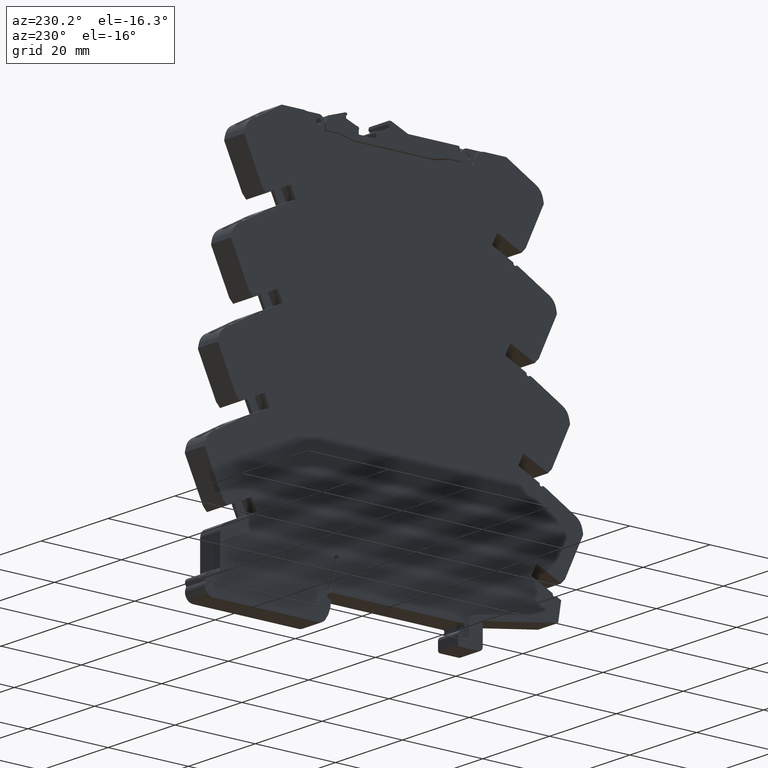
[diagram: clean part render]
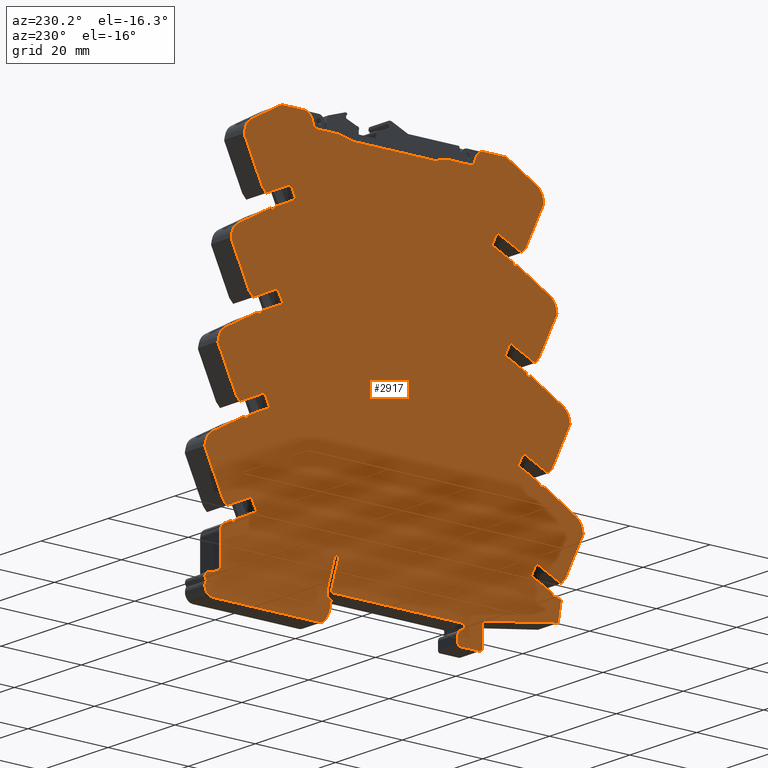
[diagram: same view with one face highlighted and labeled with its STEP entity id]
A machine part, auxiliary view. The second image highlights one B-rep face of the part: STEP entity #2917.
In plain terms, the highlighted planar face has unit normal (-1, 0, 0).
Its self-contained STEP definition (entity closure, byte-faithful):
#7 = DIRECTION ( 'NONE',  ( 0.000000000000000000, -0.4226482349094395352, -0.9062938097151139738 ) ) ;
#29 = VECTOR ( 'NONE', #3311, 39.37007874015748854 ) ;
#33 = CARTESIAN_POINT ( 'NONE',  ( -0.2362204724409449064, 1.720748031496063257, -0.001835537948230602477 ) ) ;
#57 = ORIENTED_EDGE ( 'NONE', *, *, #2651, .T. ) ;
#58 = DIRECTION ( 'NONE',  ( 1.000000000000000000, 0.000000000000000000, 0.000000000000000000 ) ) ;
#90 = LINE ( 'NONE', #9767, #1083 ) ;
#91 = EDGE_CURVE ( 'NONE', #5997, #3375, #6181, .T. ) ;
#123 = DIRECTION ( 'NONE',  ( 0.000000000000000000, 1.000000000000000000, 0.000000000000000000 ) ) ;
#125 = LINE ( 'NONE', #4889, #7889 ) ;
#151 = EDGE_CURVE ( 'NONE', #6780, #9658, #1881, .T. ) ;
#153 = CIRCLE ( 'NONE', #3163, 0.01968503937007875723 ) ;
#159 = LINE ( 'NONE', #944, #10084 ) ;
#162 = DIRECTION ( 'NONE',  ( 1.000000000000000000, 0.000000000000000000, 0.000000000000000000 ) ) ;
#181 = EDGE_CURVE ( 'NONE', #7718, #4233, #3027, .T. ) ;
#187 = CARTESIAN_POINT ( 'NONE',  ( -0.2362204724409449064, -1.447677165354330775, 1.225295275590551292 ) ) ;
#190 = CARTESIAN_POINT ( 'NONE',  ( -0.2362204724409449064, 1.525905511811023629, 1.334074803149606359 ) ) ;
#203 = DIRECTION ( 'NONE',  ( 0.000000000000000000, -0.4226482349094424218, 0.9062938097151126415 ) ) ;
#214 = LINE ( 'NONE', #2462, #1096 ) ;
#221 = CARTESIAN_POINT ( 'NONE',  ( -0.2362204724409449064, -1.190196850393700823, 2.909153543307086753 ) ) ;
#229 = ORIENTED_EDGE ( 'NONE', *, *, #3993, .T. ) ;
#246 = AXIS2_PLACEMENT_3D ( 'NONE', #6278, #7073, #674 ) ;
#249 = ORIENTED_EDGE ( 'NONE', *, *, #4568, .T. ) ;
#260 = DIRECTION ( 'NONE',  ( -1.000000000000000000, -0.000000000000000000, -0.000000000000000000 ) ) ;
#270 = VERTEX_POINT ( 'NONE', #9394 ) ;
#275 = ORIENTED_EDGE ( 'NONE', *, *, #9486, .F. ) ;
#298 = EDGE_CURVE ( 'NONE', #8153, #7829, #504, .T. ) ;
#302 = VERTEX_POINT ( 'NONE', #6960 ) ;
#344 = VERTEX_POINT ( 'NONE', #3224 ) ;
#346 = DIRECTION ( 'NONE',  ( 0.000000000000000000, 1.000000000000000000, 0.000000000000000000 ) ) ;
#352 = DIRECTION ( 'NONE',  ( 0.000000000000000000, -0.9063118994067310696, -0.4226094426225749934 ) ) ;
#353 = VECTOR ( 'NONE', #1930, 39.37007874015748854 ) ;
#383 = CARTESIAN_POINT ( 'NONE',  ( -0.2362204724409449064, -1.444233968825330949, 2.616964333392858499 ) ) ;
#394 = VERTEX_POINT ( 'NONE', #2242 ) ;
#397 = CARTESIAN_POINT ( 'NONE',  ( -0.2362204724409449064, 1.479724409448818889, 1.225295275590551292 ) ) ;
#415 = VERTEX_POINT ( 'NONE', #5490 ) ;
#417 = VERTEX_POINT ( 'NONE', #1457 ) ;
#418 = LINE ( 'NONE', #8408, #4169 ) ;
#422 = CARTESIAN_POINT ( 'NONE',  ( -0.2362204724409449064, 0.9016357375216751402, 3.740177165354330757 ) ) ;
#439 = ORIENTED_EDGE ( 'NONE', *, *, #10289, .T. ) ;
#440 = ORIENTED_EDGE ( 'NONE', *, *, #6250, .T. ) ;
#449 = VECTOR ( 'NONE', #9316, 39.37007874015748854 ) ;
#461 = ORIENTED_EDGE ( 'NONE', *, *, #1124, .T. ) ;
#501 = CARTESIAN_POINT ( 'NONE',  ( -0.2362204724409449064, -1.437522344253834738, 3.444598749689074868 ) ) ;
#504 = CIRCLE ( 'NONE', #6532, 0.01968503937007875723 ) ;
#516 = CARTESIAN_POINT ( 'NONE',  ( -0.2362204724409449064, 1.831007254384196870, -0.1023438533225779490 ) ) ;
#520 = CARTESIAN_POINT ( 'NONE',  ( -0.2362204724409449064, -1.766449744159070967, 1.048015725671031406 ) ) ;
#527 = CARTESIAN_POINT ( 'NONE',  ( -0.2362204724409449064, 1.307283464566929121, 3.059232283464566660 ) ) ;
#532 = CARTESIAN_POINT ( 'NONE',  ( -0.2362204724409449064, -0.8695884933168150921, 3.649625984251968713 ) ) ;
#538 = ORIENTED_EDGE ( 'NONE', *, *, #824, .T. ) ;
#542 = ORIENTED_EDGE ( 'NONE', *, *, #7149, .T. ) ;
#554 = VECTOR ( 'NONE', #1177, 39.37007874015748143 ) ;
#560 = CARTESIAN_POINT ( 'NONE',  ( -0.2362204724409449064, -0.7323003381298622827, 3.661437007874015936 ) ) ;
#564 = LINE ( 'NONE', #10134, #2298 ) ;
#570 = EDGE_CURVE ( 'NONE', #394, #8151, #8918, .T. ) ;
#576 = AXIS2_PLACEMENT_3D ( 'NONE', #2245, #9295, #3030 ) ;
#585 = ORIENTED_EDGE ( 'NONE', *, *, #9539, .T. ) ;
#596 = CIRCLE ( 'NONE', #7130, 0.007874015748031312073 ) ;
#612 = CARTESIAN_POINT ( 'NONE',  ( -0.2362204724409449064, 1.436023622047244208, 2.217303149606299151 ) ) ;
#626 = ORIENTED_EDGE ( 'NONE', *, *, #9822, .T. ) ;
#629 = DIRECTION ( 'NONE',  ( 0.000000000000000000, 0.9060307998452998834, 0.4232117551908099462 ) ) ;
#630 = EDGE_CURVE ( 'NONE', #10270, #7424, #4003, .T. ) ;
#631 = VERTEX_POINT ( 'NONE', #8379 ) ;
#650 = ORIENTED_EDGE ( 'NONE', *, *, #151, .T. ) ;
#653 = ORIENTED_EDGE ( 'NONE', *, *, #682, .T. ) ;
#662 = ORIENTED_EDGE ( 'NONE', *, *, #9157, .F. ) ;
#671 = VECTOR ( 'NONE', #10051, 39.37007874015749564 ) ;
#674 = DIRECTION ( 'NONE',  ( 0.000000000000000000, 1.000000000000000000, 0.000000000000000000 ) ) ;
#679 = EDGE_CURVE ( 'NONE', #746, #757, #685, .T. ) ;
#682 = EDGE_CURVE ( 'NONE', #4018, #1861, #2299, .T. ) ;
#685 = LINE ( 'NONE', #8662, #8566 ) ;
#719 = CARTESIAN_POINT ( 'NONE',  ( -0.2362204724409449064, 1.693503937007873938, 0.5334448818897638001 ) ) ;
#721 = DIRECTION ( 'NONE',  ( 0.000000000000000000, -0.6852564089022220584, -0.7283018976073251105 ) ) ;
#723 = LINE ( 'NONE', #7967, #3357 ) ;
#746 = VERTEX_POINT ( 'NONE', #1808 ) ;
#757 = VERTEX_POINT ( 'NONE', #190 ) ;
#770 = DIRECTION ( 'NONE',  ( 0.000000000000000000, -0.4226482349094378144, -0.9062938097151146399 ) ) ;
#800 = DIRECTION ( 'NONE',  ( -1.000000000000000000, -0.000000000000000000, -0.000000000000000000 ) ) ;
#802 = CIRCLE ( 'NONE', #2635, 0.01574803149605634098 ) ;
#812 = DIRECTION ( 'NONE',  ( 0.000000000000000000, 0.9063311474839961246, 0.4225681614844435385 ) ) ;
#816 = DIRECTION ( 'NONE',  ( 1.000000000000000000, 0.000000000000000000, 0.000000000000000000 ) ) ;
#818 = DIRECTION ( 'NONE',  ( 1.000000000000000000, 0.000000000000000000, 0.000000000000000000 ) ) ;
#823 = DIRECTION ( 'NONE',  ( 0.000000000000000000, 0.9063659980330290855, -0.4224934054036715292 ) ) ;
#824 = EDGE_CURVE ( 'NONE', #5672, #8909, #7554, .T. ) ;
#849 = DIRECTION ( 'NONE',  ( 0.000000000000000000, 1.000000000000000000, 0.000000000000000000 ) ) ;
#850 = VERTEX_POINT ( 'NONE', #4329 ) ;
#851 = VECTOR ( 'NONE', #629, 39.37007874015748143 ) ;
#894 = CARTESIAN_POINT ( 'NONE',  ( -0.2362204724409449064, 1.733855184254358139, 1.803262105096378187 ) ) ;
#905 = ORIENTED_EDGE ( 'NONE', *, *, #4185, .T. ) ;
#908 = DIRECTION ( 'NONE',  ( 0.000000000000000000, -0.4225449552124983521, 0.9063419668229358850 ) ) ;
#909 = VERTEX_POINT ( 'NONE', #5174 ) ;
#914 = VERTEX_POINT ( 'NONE', #8403 ) ;
#920 = EDGE_CURVE ( 'NONE', #7203, #2966, #4547, .T. ) ;
#929 = EDGE_CURVE ( 'NONE', #6090, #1309, #9972, .T. ) ;
#932 = VERTEX_POINT ( 'NONE', #8498 ) ;
#939 = CARTESIAN_POINT ( 'NONE',  ( -0.2362204724409449064, 1.436023622047244208, 2.217303149606299151 ) ) ;
#944 = CARTESIAN_POINT ( 'NONE',  ( -0.2362204724409449064, 1.741299212598425239, 1.754035433070866290 ) ) ;
#950 = DIRECTION ( 'NONE',  ( 0.000000000000000000, 0.8712553356216642397, 0.4908300522082781336 ) ) ;
#956 = ORIENTED_EDGE ( 'NONE', *, *, #6719, .T. ) ;
#980 = DIRECTION ( 'NONE',  ( 0.000000000000000000, 1.000000000000000000, -3.122502256757730228E-13 ) ) ;
#991 = EDGE_CURVE ( 'NONE', #1734, #1356, #8609, .T. ) ;
#1015 = VECTOR ( 'NONE', #1994, 39.37007874015747433 ) ;
#1037 = ORIENTED_EDGE ( 'NONE', *, *, #10190, .T. ) ;
#1051 = CARTESIAN_POINT ( 'NONE',  ( -0.2362204724409449064, -1.695002659214460694, 1.760740481972539406 ) ) ;
#1072 = CARTESIAN_POINT ( 'NONE',  ( -0.2362204724409449064, -1.155118110236220463, 2.925531496062992343 ) ) ;
#1083 = VECTOR ( 'NONE', #352, 39.37007874015748854 ) ;
#1084 = CARTESIAN_POINT ( 'NONE',  ( -0.2362204724409449064, 0.6658629687992737578, -0.04865885780836307073 ) ) ;
#1085 = ORIENTED_EDGE ( 'NONE', *, *, #10206, .T. ) ;
#1096 = VECTOR ( 'NONE', #1890, 39.37007874015748854 ) ;
#1098 = LINE ( 'NONE', #527, #6632 ) ;
#1109 = ORIENTED_EDGE ( 'NONE', *, *, #8012, .T. ) ;
#1120 = VECTOR ( 'NONE', #7359, 39.37007874015748143 ) ;
#1124 = EDGE_CURVE ( 'NONE', #344, #8153, #3958, .T. ) ;
#1125 = EDGE_CURVE ( 'NONE', #7686, #417, #4070, .T. ) ;
#1129 = EDGE_CURVE ( 'NONE', #10067, #8375, #10347, .T. ) ;
#1132 = DIRECTION ( 'NONE',  ( -1.000000000000000000, -0.000000000000000000, -0.000000000000000000 ) ) ;
#1153 = CARTESIAN_POINT ( 'NONE',  ( -0.2362204724409449064, -1.381968503937007986, 0.6043503937007873583 ) ) ;
#1177 = DIRECTION ( 'NONE',  ( 0.000000000000000000, -0.4225449552125195019, 0.9063419668229258930 ) ) ;
#1183 = ORIENTED_EDGE ( 'NONE', *, *, #9823, .T. ) ;
#1190 = EDGE_CURVE ( 'NONE', #415, #2823, #90, .T. ) ;
#1196 = CIRCLE ( 'NONE', #8073, 0.01181102362204724046 ) ;
#1198 = DIRECTION ( 'NONE',  ( 1.000000000000000000, 0.000000000000000000, 0.000000000000000000 ) ) ;
#1199 = CARTESIAN_POINT ( 'NONE',  ( -0.2362204724409449064, -0.8540551181102362666, 0.05360236220472441165 ) ) ;
#1208 = ORIENTED_EDGE ( 'NONE', *, *, #9024, .T. ) ;
#1225 = DIRECTION ( 'NONE',  ( 0.000000000000000000, 0.9060307998452727940, -0.4232117551908678443 ) ) ;
#1234 = DIRECTION ( 'NONE',  ( 1.000000000000000000, 0.000000000000000000, 0.000000000000000000 ) ) ;
#1243 = CARTESIAN_POINT ( 'NONE',  ( -0.2362204724409449064, 1.412279302610436993, 3.573801557409535423 ) ) ;
#1253 = LINE ( 'NONE', #2767, #8228 ) ;
#1267 = DIRECTION ( 'NONE',  ( 0.000000000000000000, -0.9063118994067302925, 0.4226094426225766032 ) ) ;
#1277 = AXIS2_PLACEMENT_3D ( 'NONE', #4957, #3428, #980 ) ;
#1297 = VERTEX_POINT ( 'NONE', #5009 ) ;
#1301 = LINE ( 'NONE', #10140, #4657 ) ;
#1309 = VERTEX_POINT ( 'NONE', #1084 ) ;
#1311 = DIRECTION ( 'NONE',  ( 0.000000000000000000, 1.000000000000000000, 0.000000000000000000 ) ) ;
#1318 = VERTEX_POINT ( 'NONE', #6157 ) ;
#1321 = CARTESIAN_POINT ( 'NONE',  ( -0.2362204724409449064, 1.871538092285324417, 0.9188113481142677896 ) ) ;
#1324 = VERTEX_POINT ( 'NONE', #8439 ) ;
#1325 = DIRECTION ( 'NONE',  ( 1.000000000000000000, 0.000000000000000000, 0.000000000000000000 ) ) ;
#1333 = CIRCLE ( 'NONE', #7868, 0.04724409448818814306 ) ;
#1348 = AXIS2_PLACEMENT_3D ( 'NONE', #3820, #8680, #3978 ) ;
#1355 = DIRECTION ( 'NONE',  ( 0.000000000000000000, 1.000000000000000000, 0.000000000000000000 ) ) ;
#1356 = VERTEX_POINT ( 'NONE', #2805 ) ;
#1359 = CARTESIAN_POINT ( 'NONE',  ( -0.2362204724409449064, 1.749930010076509612, -0.03986454894153913103 ) ) ;
#1366 = DIRECTION ( 'NONE',  ( 0.000000000000000000, -0.9063118994067308476, -0.4226094426225754375 ) ) ;
#1367 = ORIENTED_EDGE ( 'NONE', *, *, #1129, .T. ) ;
#1386 = LINE ( 'NONE', #9162, #2342 ) ;
#1388 = VERTEX_POINT ( 'NONE', #397 ) ;
#1395 = ORIENTED_EDGE ( 'NONE', *, *, #1190, .T. ) ;
#1399 = LINE ( 'NONE', #3490, #5868 ) ;
#1404 = ORIENTED_EDGE ( 'NONE', *, *, #5982, .F. ) ;
#1408 = CARTESIAN_POINT ( 'NONE',  ( -0.2362204724409449064, -1.493858267716535515, 1.334074803149606359 ) ) ;
#1438 = ORIENTED_EDGE ( 'NONE', *, *, #5420, .T. ) ;
#1452 = CARTESIAN_POINT ( 'NONE',  ( -0.2362204724409449064, 1.605115026774043496, 2.645191238954645474 ) ) ;
#1457 = CARTESIAN_POINT ( 'NONE',  ( -0.2362204724409449064, -1.412598425196850416, 1.241673228346456659 ) ) ;
#1459 = LINE ( 'NONE', #5391, #9552 ) ;
#1460 = CIRCLE ( 'NONE', #6129, 0.01968503937007875723 ) ;
#1468 = VERTEX_POINT ( 'NONE', #10387 ) ;
#1492 = CARTESIAN_POINT ( 'NONE',  ( -0.2362204724409449064, 0.7522805630401850907, -0.2558858267716535573 ) ) ;
#1511 = CIRCLE ( 'NONE', #7369, 0.07874015748031502893 ) ;
#1517 = CIRCLE ( 'NONE', #6704, 0.1318897637795275191 ) ;
#1527 = ORIENTED_EDGE ( 'NONE', *, *, #8497, .T. ) ;
#1536 = CARTESIAN_POINT ( 'NONE',  ( -0.2362204724409449064, -1.508969429198441015, 2.731873993387567090 ) ) ;
#1552 = DIRECTION ( 'NONE',  ( 0.000000000000000000, -0.9063118994067305145, 0.4226094426225758260 ) ) ;
#1554 = ORIENTED_EDGE ( 'NONE', *, *, #9411, .T. ) ;
#1570 = DIRECTION ( 'NONE',  ( 0.000000000000000000, 1.000000000000000000, 0.000000000000000000 ) ) ;
#1590 = EDGE_CURVE ( 'NONE', #9592, #3836, #8009, .T. ) ;
#1592 = LINE ( 'NONE', #4730, #5208 ) ;
#1595 = VERTEX_POINT ( 'NONE', #7217 ) ;
#1597 = CARTESIAN_POINT ( 'NONE',  ( -0.2362204724409449064, 1.374921259842519783, 2.056043307086614202 ) ) ;
#1598 = DIRECTION ( 'NONE',  ( 0.000000000000000000, -0.9063118994067305145, -0.4226094426225758260 ) ) ;
#1605 = VERTEX_POINT ( 'NONE', #5782 ) ;
#1607 = LINE ( 'NONE', #9045, #2185 ) ;
#1611 = ORIENTED_EDGE ( 'NONE', *, *, #9040, .T. ) ;
#1613 = VECTOR ( 'NONE', #2665, 39.37007874015748143 ) ;
#1614 = DIRECTION ( 'NONE',  ( 1.000000000000000000, 0.000000000000000000, 0.000000000000000000 ) ) ;
#1624 = VERTEX_POINT ( 'NONE', #6621 ) ;
#1627 = VECTOR ( 'NONE', #3535, 39.37007874015748854 ) ;
#1657 = CARTESIAN_POINT ( 'NONE',  ( -0.2362204724409449064, 1.791614549158956571, -0.1771456692913385977 ) ) ;
#1683 = ORIENTED_EDGE ( 'NONE', *, *, #1935, .T. ) ;
#1689 = AXIS2_PLACEMENT_3D ( 'NONE', #5971, #6021, #7770 ) ;
#1691 = VECTOR ( 'NONE', #7, 39.37007874015748143 ) ;
#1695 = VECTOR ( 'NONE', #3622, 39.37007874015748143 ) ;
#1714 = EDGE_CURVE ( 'NONE', #8909, #6260, #8269, .T. ) ;
#1718 = ORIENTED_EDGE ( 'NONE', *, *, #4915, .T. ) ;
#1721 = EDGE_CURVE ( 'NONE', #5861, #10337, #5897, .T. ) ;
#1727 = DIRECTION ( 'NONE',  ( 0.000000000000000000, 1.000000000000000000, 0.000000000000000000 ) ) ;
#1734 = VERTEX_POINT ( 'NONE', #8111 ) ;
#1747 = VERTEX_POINT ( 'NONE', #2793 ) ;
#1763 = EDGE_CURVE ( 'NONE', #1356, #270, #4464, .T. ) ;
#1769 = DIRECTION ( 'NONE',  ( 0.000000000000000000, 1.000000000000000000, 0.000000000000000000 ) ) ;
#1771 = ORIENTED_EDGE ( 'NONE', *, *, #3569, .T. ) ;
#1790 = CIRCLE ( 'NONE', #1965, 0.03937007874015669567 ) ;
#1794 = CARTESIAN_POINT ( 'NONE',  ( -0.2362204724409449064, -1.839125946561035452, 0.9221817800626497252 ) ) ;
#1808 = CARTESIAN_POINT ( 'NONE',  ( -0.2362204724409449064, 1.564763779527559295, 1.375374015748031642 ) ) ;
#1816 = EDGE_CURVE ( 'NONE', #8626, #3778, #9110, .T. ) ;
#1819 = VERTEX_POINT ( 'NONE', #6146 ) ;
#1821 = EDGE_CURVE ( 'NONE', #4919, #5330, #1386, .T. ) ;
#1825 = CARTESIAN_POINT ( 'NONE',  ( -0.2362204724409449064, -1.403976377952755872, 2.217303149606299151 ) ) ;
#1827 = CIRCLE ( 'NONE', #10090, 0.01968503937007875723 ) ;
#1842 = AXIS2_PLACEMENT_3D ( 'NONE', #7586, #4312, #346 ) ;
#1861 = VERTEX_POINT ( 'NONE', #10275 ) ;
#1872 = DIRECTION ( 'NONE',  ( 0.000000000000000000, 1.000000000000000000, 0.000000000000000000 ) ) ;
#1873 = VERTEX_POINT ( 'NONE', #8792 ) ;
#1875 = CARTESIAN_POINT ( 'NONE',  ( -0.2362204724409449064, -1.332047244094488381, 0.4973031496062992329 ) ) ;
#1881 = LINE ( 'NONE', #5862, #8212 ) ;
#1890 = DIRECTION ( 'NONE',  ( 0.000000000000000000, 0.8712553356216631295, 0.4908300522082800210 ) ) ;
#1911 = DIRECTION ( 'NONE',  ( 0.000000000000000000, 1.000000000000000000, 0.000000000000000000 ) ) ;
#1930 = DIRECTION ( 'NONE',  ( 0.000000000000000000, 0.8712553356216620193, -0.4908300522082820749 ) ) ;
#1935 = EDGE_CURVE ( 'NONE', #5729, #2876, #6695, .T. ) ;
#1942 = VERTEX_POINT ( 'NONE', #3884 ) ;
#1962 = DIRECTION ( 'NONE',  ( 0.000000000000000000, -1.000000000000000000, 0.000000000000000000 ) ) ;
#1965 = AXIS2_PLACEMENT_3D ( 'NONE', #8524, #9664, #2361 ) ;
#1974 = ORIENTED_EDGE ( 'NONE', *, *, #4947, .T. ) ;
#1975 = CARTESIAN_POINT ( 'NONE',  ( -0.2362204724409449064, -0.6512992125984251590, -0.09683581987240943989 ) ) ;
#1984 = CARTESIAN_POINT ( 'NONE',  ( -0.2362204724409449064, 1.206218988618189103, 2.920585811535944654 ) ) ;
#1989 = ORIENTED_EDGE ( 'NONE', *, *, #298, .T. ) ;
#1994 = DIRECTION ( 'NONE',  ( 0.000000000000000000, -0.4225449552125074559, 0.9063419668229316661 ) ) ;
#1998 = LINE ( 'NONE', #8302, #7711 ) ;
#2008 = CARTESIAN_POINT ( 'NONE',  ( -0.2362204724409449064, -0.7323003380000688844, 3.614192913385826600 ) ) ;
#2011 = VECTOR ( 'NONE', #950, 39.37007874015748854 ) ;
#2024 = CARTESIAN_POINT ( 'NONE',  ( -0.2362204724409449064, 1.605115026733466843, 2.645191239139846218 ) ) ;
#2059 = EDGE_CURVE ( 'NONE', #932, #4290, #4237, .T. ) ;
#2070 = CARTESIAN_POINT ( 'NONE',  ( -0.2362204724409449064, 1.855790060789259899, 0.3031692913385826693 ) ) ;
#2076 = VERTEX_POINT ( 'NONE', #221 ) ;
#2079 = DIRECTION ( 'NONE',  ( 1.000000000000000000, 0.000000000000000000, 0.000000000000000000 ) ) ;
#2090 = ORIENTED_EDGE ( 'NONE', *, *, #10376, .T. ) ;
#2093 = VECTOR ( 'NONE', #6802, 39.37007874015748854 ) ;
#2115 = CIRCLE ( 'NONE', #6963, 0.01574803149607355290 ) ;
#2120 = DIRECTION ( 'NONE',  ( 0.000000000000000000, -1.000000000000000000, 0.000000000000000000 ) ) ;
#2144 = CARTESIAN_POINT ( 'NONE',  ( -0.2362204724409449064, -1.283858267716535551, 2.083602362204724390 ) ) ;
#2157 = EDGE_CURVE ( 'NONE', #9891, #7414, #1998, .T. ) ;
#2161 = ORIENTED_EDGE ( 'NONE', *, *, #9513, .T. ) ;
#2164 = LINE ( 'NONE', #7734, #2957 ) ;
#2174 = VERTEX_POINT ( 'NONE', #422 ) ;
#2175 = AXIS2_PLACEMENT_3D ( 'NONE', #6618, #4253, #9846 ) ;
#2178 = CARTESIAN_POINT ( 'NONE',  ( -0.2362204724409449064, 1.334959146098503968, 2.078656677677677145 ) ) ;
#2182 = DIRECTION ( 'NONE',  ( 1.000000000000000000, 0.000000000000000000, 0.000000000000000000 ) ) ;
#2185 = VECTOR ( 'NONE', #2437, 39.37007874015748143 ) ;
#2192 = CARTESIAN_POINT ( 'NONE',  ( -0.2362204724409449064, 1.476374869230964393, 3.487120373099377613 ) ) ;
#2199 = CIRCLE ( 'NONE', #8233, 0.007874015748031449116 ) ;
#2211 = CARTESIAN_POINT ( 'NONE',  ( -0.2362204724409449064, -1.637709586313019550, 1.889944859735338545 ) ) ;
#2214 = ORIENTED_EDGE ( 'NONE', *, *, #8605, .T. ) ;
#2235 = EDGE_CURVE ( 'NONE', #7094, #10102, #1511, .T. ) ;
#2236 = CARTESIAN_POINT ( 'NONE',  ( -0.2362204724409449064, 1.675275590551181137, 0.3521850393700787785 ) ) ;
#2239 = CARTESIAN_POINT ( 'NONE',  ( -0.2362204724409449064, 1.479724409448818889, 1.225295275590551292 ) ) ;
#2242 = CARTESIAN_POINT ( 'NONE',  ( -0.2362204724409449064, 0.5568860546254607025, 0.2883012437899358238 ) ) ;
#2245 = CARTESIAN_POINT ( 'NONE',  ( -0.2362204724409449064, 0.6581207157742087199, -0.04722440944883976588 ) ) ;
#2264 = ORIENTED_EDGE ( 'NONE', *, *, #9671, .T. ) ;
#2274 = VERTEX_POINT ( 'NONE', #2211 ) ;
#2276 = ORIENTED_EDGE ( 'NONE', *, *, #1763, .T. ) ;
#2287 = DIRECTION ( 'NONE',  ( 0.000000000000000000, -0.9063118994067310696, -0.4226094426225749934 ) ) ;
#2298 = VECTOR ( 'NONE', #6852, 39.37007874015748854 ) ;
#2299 = LINE ( 'NONE', #5496, #6764 ) ;
#2306 = AXIS2_PLACEMENT_3D ( 'NONE', #10341, #3170, #3220 ) ;
#2307 = CARTESIAN_POINT ( 'NONE',  ( -0.2362204724409449064, -0.6119291338582677486, 0.9188113481142677896 ) ) ;
#2342 = VECTOR ( 'NONE', #5149, 39.37007874015748854 ) ;
#2344 = EDGE_CURVE ( 'NONE', #6470, #1318, #3872, .T. ) ;
#2348 = EDGE_CURVE ( 'NONE', #7424, #3538, #6290, .T. ) ;
#2356 = VERTEX_POINT ( 'NONE', #8570 ) ;
#2357 = DIRECTION ( 'NONE',  ( 0.000000000000000000, 1.000000000000000000, 0.000000000000000000 ) ) ;
#2361 = DIRECTION ( 'NONE',  ( 0.000000000000000000, 1.000000000000000000, 0.000000000000000000 ) ) ;
#2374 = VERTEX_POINT ( 'NONE', #939 ) ;
#2406 = DIRECTION ( 'NONE',  ( 0.000000000000000000, -0.4226482349094407009, 0.9062938097151134187 ) ) ;
#2407 = ORIENTED_EDGE ( 'NONE', *, *, #2059, .T. ) ;
#2420 = CARTESIAN_POINT ( 'NONE',  ( -0.2362204724409449064, -1.581645637638747992, 2.606040020218866271 ) ) ;
#2428 = ORIENTED_EDGE ( 'NONE', *, *, #3473, .T. ) ;
#2432 = DIRECTION ( 'NONE',  ( 0.000000000000000000, 0.8712553356216627964, 0.4908300522082809092 ) ) ;
#2434 = AXIS2_PLACEMENT_3D ( 'NONE', #8466, #9948, #3507 ) ;
#2435 = CARTESIAN_POINT ( 'NONE',  ( -0.2362204724409449064, 1.612559055118110374, 2.595964566929133799 ) ) ;
#2436 = VERTEX_POINT ( 'NONE', #4025 ) ;
#2437 = DIRECTION ( 'NONE',  ( 0.000000000000000000, 0.8712553356216627964, -0.4908300522082809092 ) ) ;
#2441 = CARTESIAN_POINT ( 'NONE',  ( -0.2362204724409449064, 1.642007874015748214, 0.2808178800000795117 ) ) ;
#2457 = EDGE_CURVE ( 'NONE', #10175, #5489, #4812, .T. ) ;
#2462 = CARTESIAN_POINT ( 'NONE',  ( -0.2362204724409449064, -1.637709586678756102, 1.889944859529299359 ) ) ;
#2480 = LINE ( 'NONE', #5675, #10243 ) ;
#2485 = DIRECTION ( 'NONE',  ( 0.000000000000000000, -0.4225449552124991848, -0.9063419668229355519 ) ) ;
#2486 = CIRCLE ( 'NONE', #8366, 0.007874015748031312073 ) ;
#2498 = VECTOR ( 'NONE', #7011, 39.37007874015748143 ) ;
#2502 = VERTEX_POINT ( 'NONE', #2817 ) ;
#2505 = VECTOR ( 'NONE', #6791, 39.37007874015748854 ) ;
#2521 = ORIENTED_EDGE ( 'NONE', *, *, #570, .T. ) ;
#2525 = CIRCLE ( 'NONE', #8401, 0.03937007874015751446 ) ;
#2533 = LINE ( 'NONE', #1794, #9158 ) ;
#2539 = ORIENTED_EDGE ( 'NONE', *, *, #8705, .T. ) ;
#2545 = DIRECTION ( 'NONE',  ( 1.000000000000000000, 0.000000000000000000, 0.000000000000000000 ) ) ;
#2557 = EDGE_CURVE ( 'NONE', #1318, #3765, #1399, .T. ) ;
#2568 = LINE ( 'NONE', #6497, #1613 ) ;
#2597 = CARTESIAN_POINT ( 'NONE',  ( -0.2362204724409449064, 1.855790060789259899, -0.05509842519685038964 ) ) ;
#2615 = CIRCLE ( 'NONE', #2790, 0.1318897637795236888 ) ;
#2616 = DIRECTION ( 'NONE',  ( 0.000000000000000000, 0.2140189285604640335, -0.9768295133839020039 ) ) ;
#2620 = CARTESIAN_POINT ( 'NONE',  ( -0.2362204724409449064, 1.798496987887826970, 1.048015725877072812 ) ) ;
#2621 = VECTOR ( 'NONE', #6668, 39.37007874015748143 ) ;
#2631 = LINE ( 'NONE', #4934, #1120 ) ;
#2632 = CARTESIAN_POINT ( 'NONE',  ( -0.2362204724409449064, -0.9458267716535433411, 3.023090551181102370 ) ) ;
#2635 = AXIS2_PLACEMENT_3D ( 'NONE', #501, #1132, #3576 ) ;
#2651 = EDGE_CURVE ( 'NONE', #909, #2374, #8908, .T. ) ;
#2658 = AXIS2_PLACEMENT_3D ( 'NONE', #8509, #5450, #4495 ) ;
#2665 = DIRECTION ( 'NONE',  ( -0.000000000000000000, 1.000000000000000000, -0.000000000000000000 ) ) ;
#2700 = VERTEX_POINT ( 'NONE', #7162 ) ;
#2712 = DIRECTION ( 'NONE',  ( 1.000000000000000000, 0.000000000000000000, 0.000000000000000000 ) ) ;
#2754 = CARTESIAN_POINT ( 'NONE',  ( -0.2362204724409449064, 1.268425196850393677, 3.017933070866142042 ) ) ;
#2755 = LINE ( 'NONE', #10025, #4969 ) ;
#2764 = VERTEX_POINT ( 'NONE', #33 ) ;
#2767 = CARTESIAN_POINT ( 'NONE',  ( -0.2362204724409449064, -1.594212598425196914, 0.1771850393700787618 ) ) ;
#2774 = VECTOR ( 'NONE', #3908, 39.37007874015748143 ) ;
#2776 = ORIENTED_EDGE ( 'NONE', *, *, #5096, .T. ) ;
#2785 = CARTESIAN_POINT ( 'NONE',  ( -0.2362204724409449064, -1.540818896248740133, 0.3950466610211732510 ) ) ;
#2790 = AXIS2_PLACEMENT_3D ( 'NONE', #383, #1325, #6671 ) ;
#2793 = CARTESIAN_POINT ( 'NONE',  ( -0.2362204724409449064, 1.027795275590551283, 3.130137795275591106 ) ) ;
#2795 = CIRCLE ( 'NONE', #6817, 0.07874015748031502893 ) ;
#2804 = VECTOR ( 'NONE', #2287, 39.37007874015748854 ) ;
#2805 = CARTESIAN_POINT ( 'NONE',  ( -0.2362204724409449064, -1.532716535433070959, 1.375374015748031642 ) ) ;
#2809 = LINE ( 'NONE', #1199, #5380 ) ;
#2817 = CARTESIAN_POINT ( 'NONE',  ( -0.2362204724409449064, -1.380229271352389597, 3.573803127451874229 ) ) ;
#2821 = DIRECTION ( 'NONE',  ( -0.000000000000000000, 1.000000000000000000, -0.000000000000000000 ) ) ;
#2823 = VERTEX_POINT ( 'NONE', #5898 ) ;
#2824 = CARTESIAN_POINT ( 'NONE',  ( -0.2362204724409449064, 0.7643475820945571098, 3.614192913385826600 ) ) ;
#2833 = CARTESIAN_POINT ( 'NONE',  ( -0.2362204724409449064, 1.720748031496063257, 0.9188113481142677896 ) ) ;
#2832 = LINE ( 'NONE', #3611, #671 ) ;
#2842 = VERTEX_POINT ( 'NONE', #187 ) ;
#2854 = ORIENTED_EDGE ( 'NONE', *, *, #3736, .T. ) ;
#2865 = AXIS2_PLACEMENT_3D ( 'NONE', #2441, #818, #1872 ) ;
#2876 = VERTEX_POINT ( 'NONE', #7315 ) ;
#2879 = DIRECTION ( 'NONE',  ( 0.000000000000000000, -0.1590199681579109459, 0.9872753667174405390 ) ) ;
#2880 = VERTEX_POINT ( 'NONE', #4995 ) ;
#2887 = ORIENTED_EDGE ( 'NONE', *, *, #3591, .T. ) ;
#2897 = CARTESIAN_POINT ( 'NONE',  ( -0.2362204724409449064, -0.6316141732283465648, -0.1692716535433071157 ) ) ;
#2917 = ADVANCED_FACE ( 'NONE', ( #9217 ), #4465, .T. ) ;
#2919 = VECTOR ( 'NONE', #823, 39.37007874015748854 ) ;
#2924 = ORIENTED_EDGE ( 'NONE', *, *, #7016, .T. ) ;
#2929 = DIRECTION ( 'NONE',  ( 1.000000000000000000, 0.000000000000000000, 0.000000000000000000 ) ) ;
#2948 = DIRECTION ( 'NONE',  ( 0.000000000000000000, 1.000000000000000000, 0.000000000000000000 ) ) ;
#2952 = VERTEX_POINT ( 'NONE', #6204 ) ;
#2957 = VECTOR ( 'NONE', #1267, 39.37007874015748854 ) ;
#2966 = VERTEX_POINT ( 'NONE', #6095 ) ;
#2979 = EDGE_CURVE ( 'NONE', #1873, #2842, #7744, .T. ) ;
#2986 = CARTESIAN_POINT ( 'NONE',  ( -0.2362204724409449064, -0.6119291338582677486, -0.1692716535433071157 ) ) ;
#2988 = DIRECTION ( 'NONE',  ( -0.000000000000000000, 1.000000000000000000, -0.000000000000000000 ) ) ;
#2990 = ORIENTED_EDGE ( 'NONE', *, *, #5547, .T. ) ;
#2996 = EDGE_CURVE ( 'NONE', #3538, #9457, #7729, .T. ) ;
#3004 = DIRECTION ( 'NONE',  ( 0.000000000000000000, 1.000000000000000000, 0.000000000000000000 ) ) ;
#3027 = CIRCLE ( 'NONE', #9047, 0.1318897637795275191 ) ;
#3030 = DIRECTION ( 'NONE',  ( 0.000000000000000000, 1.000000000000000000, 0.000000000000000000 ) ) ;
#3035 = DIRECTION ( 'NONE',  ( 0.000000000000000000, 1.000000000000000000, 0.000000000000000000 ) ) ;
#3061 = EDGE_CURVE ( 'NONE', #8912, #394, #1196, .T. ) ;
#3068 = LINE ( 'NONE', #7114, #2804 ) ;
#3072 = CARTESIAN_POINT ( 'NONE',  ( -0.2362204724409449064, 1.859645669291165371, -0.1374999999997049416 ) ) ;
#3075 = VECTOR ( 'NONE', #5334, 39.37007874015748854 ) ;
#3099 = DIRECTION ( 'NONE',  ( 1.000000000000000000, 0.000000000000000000, 0.000000000000000000 ) ) ;
#3101 = ORIENTED_EDGE ( 'NONE', *, *, #6829, .T. ) ;
#3123 = CIRCLE ( 'NONE', #8503, 0.03937007874015751446 ) ;
#3125 = EDGE_CURVE ( 'NONE', #1309, #9954, #1592, .T. ) ;
#3131 = ORIENTED_EDGE ( 'NONE', *, *, #5134, .T. ) ;
#3133 = CARTESIAN_POINT ( 'NONE',  ( -0.2362204724409449064, -1.572974126305641818, 1.775035199534586550 ) ) ;
#3163 = AXIS2_PLACEMENT_3D ( 'NONE', #3531, #1234, #9811 ) ;
#3167 = ORIENTED_EDGE ( 'NONE', *, *, #929, .T. ) ;
#3170 = DIRECTION ( 'NONE',  ( 1.000000000000000000, 0.000000000000000000, 0.000000000000000000 ) ) ;
#3190 = DIRECTION ( 'NONE',  ( 0.000000000000000000, -1.000000000000000000, 0.000000000000000000 ) ) ;
#3208 = VERTEX_POINT ( 'NONE', #3301 ) ;
#3219 = CARTESIAN_POINT ( 'NONE',  ( -0.2362204724409449064, 1.855790060789259899, 3.582696850393700672 ) ) ;
#3220 = DIRECTION ( 'NONE',  ( 0.000000000000000000, 1.000000000000000000, 0.000000000000000000 ) ) ;
#3224 = CARTESIAN_POINT ( 'NONE',  ( -0.2362204724409449064, 0.9778740157480314554, 3.023090551181102370 ) ) ;
#3232 = EDGE_CURVE ( 'NONE', #2876, #850, #2533, .T. ) ;
#3246 = CARTESIAN_POINT ( 'NONE',  ( -0.2362204724409449064, -0.8695884934271870259, 3.740177165354330757 ) ) ;
#3271 = EDGE_LOOP ( 'NONE', ( #8066, #662, #9393, #9636, #8830, #6435, #6176, #9841, #4121, #650, #7689, #1367, #6054, #10018, #2090, #229, #1404, #275, #8894, #6072, #10027, #1974, #6979, #8571, #6713, #626, #3167, #4720, #8546, #956, #5839, #9589, #2521, #3755, #2428, #3529, #4693, #905, #7302, #5056, #8271, #5054, #3615, #5088, #2161, #7079, #3506, #1109, #2990, #9298, #7918, #1208, #7025, #10315, #1683, #3866, #10385, #4997, #3708, #439, #10395, #5003, #6312, #1037, #9964, #2276, #3889, #7663, #4755, #6871, #3719, #1183, #9118, #9064, #10037, #1395, #3511, #1085, #4004, #6664, #6247, #1771, #8138, #440, #3361, #4256, #6973, #3131, #2407, #4550, #9276, #1554, #8612, #542, #2887, #8405, #5212, #538, #7688, #3308, #6020, #1611, #8531, #4991, #2539, #2214, #3474, #5338, #7177, #4933, #9764, #2854, #9091, #3877, #461, #1989, #3101, #585, #4019, #5661, #5779, #2924, #57, #9957, #9772, #7074, #8154, #1438, #1718, #1527, #7321, #6414, #7148, #9433, #7438, #8052, #249, #2264, #653, #8969, #2776 ) ) ;
#3283 = CARTESIAN_POINT ( 'NONE',  ( -0.2362204724409449064, 1.855790060789259899, 1.968503937023504050E-05 ) ) ;
#3300 = CARTESIAN_POINT ( 'NONE',  ( -0.2362204724409449064, -1.236377952755905563, 3.017933070866142042 ) ) ;
#3301 = CARTESIAN_POINT ( 'NONE',  ( -0.2362204724409449064, -1.451771653543306950, 3.437893700787401752 ) ) ;
#3308 = ORIENTED_EDGE ( 'NONE', *, *, #4381, .T. ) ;
#3311 = DIRECTION ( 'NONE',  ( 0.000000000000000000, 0.9063659980330363020, 0.4224934054036560971 ) ) ;
#3315 = DIRECTION ( 'NONE',  ( 0.000000000000000000, -0.6852564089022189497, -0.7283018976073279971 ) ) ;
#3344 = CARTESIAN_POINT ( 'NONE',  ( -0.2362204724409449064, 1.862595341694098572, 0.9613329714233089796 ) ) ;
#3357 = VECTOR ( 'NONE', #770, 39.37007874015748854 ) ;
#3361 = ORIENTED_EDGE ( 'NONE', *, *, #4761, .T. ) ;
#3365 = DIRECTION ( 'NONE',  ( 1.000000000000000000, 0.000000000000000000, 0.000000000000000000 ) ) ;
#3370 = CARTESIAN_POINT ( 'NONE',  ( -0.2362204724409449064, -0.5212204724409449375, 3.614192913385826600 ) ) ;
#3375 = VERTEX_POINT ( 'NONE', #7673 ) ;
#3400 = EDGE_CURVE ( 'NONE', #6972, #6627, #9330, .T. ) ;
#3428 = DIRECTION ( 'NONE',  ( -1.000000000000000000, -0.000000000000000000, -0.000000000000000000 ) ) ;
#3434 = CARTESIAN_POINT ( 'NONE',  ( -0.2362204724409449064, 0.6420078740157479924, -0.05509842519685038964 ) ) ;
#3438 = VECTOR ( 'NONE', #203, 39.37007874015748143 ) ;
#3473 = EDGE_CURVE ( 'NONE', #1468, #5314, #596, .T. ) ;
#3474 = ORIENTED_EDGE ( 'NONE', *, *, #7963, .F. ) ;
#3476 = EDGE_CURVE ( 'NONE', #9793, #4565, #6792, .T. ) ;
#3490 = CARTESIAN_POINT ( 'NONE',  ( -0.2362204724409449064, 1.106614173228346543, 2.181161417322834861 ) ) ;
#3493 = CARTESIAN_POINT ( 'NONE',  ( -0.2362204724409449064, 1.870039370078740104, 0.9121062992125984481 ) ) ;
#3503 = AXIS2_PLACEMENT_3D ( 'NONE', #6734, #3725, #5255 ) ;
#3506 = ORIENTED_EDGE ( 'NONE', *, *, #5718, .T. ) ;
#3507 = DIRECTION ( 'NONE',  ( 0.000000000000000000, 1.000000000000000000, 0.000000000000000000 ) ) ;
#3511 = ORIENTED_EDGE ( 'NONE', *, *, #6238, .T. ) ;
#3512 = CARTESIAN_POINT ( 'NONE',  ( -0.2362204724409449064, -1.283226862633937149, 2.078656677677677145 ) ) ;
#3517 = CARTESIAN_POINT ( 'NONE',  ( -0.2362204724409449064, -1.431652059484330719, 1.236727543819397646 ) ) ;
#3524 = VERTEX_POINT ( 'NONE', #10365 ) ;
#3529 = ORIENTED_EDGE ( 'NONE', *, *, #6571, .T. ) ;
#3531 = CARTESIAN_POINT ( 'NONE',  ( -0.2362204724409449064, -1.560503935618819060, 0.3950466610211732510 ) ) ;
#3535 = DIRECTION ( 'NONE',  ( 0.000000000000000000, 0.9063449952397452103, -0.4225384593192270666 ) ) ;
#3538 = VERTEX_POINT ( 'NONE', #2986 ) ;
#3542 = CARTESIAN_POINT ( 'NONE',  ( -0.2362204724409449064, 1.855790060789259899, 3.614192913385826600 ) ) ;
#3569 = EDGE_CURVE ( 'NONE', #8883, #1624, #9521, .T. ) ;
#3570 = CARTESIAN_POINT ( 'NONE',  ( -0.2362204724409449064, -1.532716535433070959, 1.375374015748031642 ) ) ;
#3576 = DIRECTION ( 'NONE',  ( 0.000000000000000000, 1.000000000000000000, -6.938893903910159154E-14 ) ) ;
#3591 = EDGE_CURVE ( 'NONE', #5409, #5910, #2568, .T. ) ;
#3602 = EDGE_CURVE ( 'NONE', #2274, #914, #214, .T. ) ;
#3611 = CARTESIAN_POINT ( 'NONE',  ( -0.2362204724409449064, 1.116968503937007862, 3.740177165354330757 ) ) ;
#3615 = ORIENTED_EDGE ( 'NONE', *, *, #9215, .T. ) ;
#3622 = DIRECTION ( 'NONE',  ( 0.000000000000000000, 0.9060307998452997724, 0.4232117551908102793 ) ) ;
#3630 = EDGE_CURVE ( 'NONE', #1942, #7153, #2115, .T. ) ;
#3648 = CIRCLE ( 'NONE', #6343, 0.1318897637795299616 ) ;
#3657 = VERTEX_POINT ( 'NONE', #3344 ) ;
#3663 = CARTESIAN_POINT ( 'NONE',  ( -0.2362204724409449064, -1.452905480158439122, 3.447969154077102694 ) ) ;
#3662 = CARTESIAN_POINT ( 'NONE',  ( -0.2362204724409449064, 1.855790060789259899, 3.740177165354330757 ) ) ;
#3670 = VECTOR ( 'NONE', #7352, 39.37007874015747433 ) ;
#3671 = EDGE_CURVE ( 'NONE', #7718, #9796, #7343, .T. ) ;
#3679 = CIRCLE ( 'NONE', #4145, 0.09055118110236221041 ) ;
#3699 = CARTESIAN_POINT ( 'NONE',  ( -0.2362204724409449064, -0.6729527559055118457, 0.9188113481142677896 ) ) ;
#3706 = LINE ( 'NONE', #6922, #3847 ) ;
#3708 = ORIENTED_EDGE ( 'NONE', *, *, #2979, .T. ) ;
#3719 = ORIENTED_EDGE ( 'NONE', *, *, #5221, .T. ) ;
#3725 = DIRECTION ( 'NONE',  ( -1.000000000000000000, -0.000000000000000000, -0.000000000000000000 ) ) ;
#3726 = CARTESIAN_POINT ( 'NONE',  ( -0.2362204724409449064, -1.471614173228346534, 1.214114173228346472 ) ) ;
#3736 = EDGE_CURVE ( 'NONE', #1605, #2356, #1098, .T. ) ;
#3740 = VECTOR ( 'NONE', #5809, 39.37007874015748143 ) ;
#3755 = ORIENTED_EDGE ( 'NONE', *, *, #6318, .T. ) ;
#3765 = VERTEX_POINT ( 'NONE', #8348 ) ;
#3778 = VERTEX_POINT ( 'NONE', #3493 ) ;
#3800 = DIRECTION ( 'NONE',  ( 0.000000000000000000, -0.9063118994067308476, 0.4226094426225754375 ) ) ;
#3820 = CARTESIAN_POINT ( 'NONE',  ( -0.2362204724409449064, 1.598309745828622175, 2.602669615830818906 ) ) ;
#3836 = VERTEX_POINT ( 'NONE', #5918 ) ;
#3847 = VECTOR ( 'NONE', #10145, 39.37007874015748854 ) ;
#3858 = CARTESIAN_POINT ( 'NONE',  ( -0.2362204724409449064, 1.608425196850393757, 0.3834055118110236693 ) ) ;
#3866 = ORIENTED_EDGE ( 'NONE', *, *, #3232, .T. ) ;
#3872 = LINE ( 'NONE', #10205, #1691 ) ;
#3877 = ORIENTED_EDGE ( 'NONE', *, *, #7280, .T. ) ;
#3884 = CARTESIAN_POINT ( 'NONE',  ( -0.2362204724409449064, -1.580511811023622037, 2.595964566929133799 ) ) ;
#3889 = ORIENTED_EDGE ( 'NONE', *, *, #6060, .T. ) ;
#3894 = EDGE_CURVE ( 'NONE', #417, #302, #7925, .T. ) ;
#3899 = LINE ( 'NONE', #719, #5520 ) ;
#3908 = DIRECTION ( 'NONE',  ( 0.000000000000000000, -0.4225449552125182806, -0.9063419668229264481 ) ) ;
#3929 = EDGE_CURVE ( 'NONE', #3778, #6028, #8611, .T. ) ;
#3952 = VECTOR ( 'NONE', #9926, 39.37007874015748854 ) ;
#3957 = AXIS2_PLACEMENT_3D ( 'NONE', #1051, #8411, #6812 ) ;
#3958 = LINE ( 'NONE', #10401, #2919 ) ;
#3978 = DIRECTION ( 'NONE',  ( 0.000000000000000000, 1.000000000000000000, 0.000000000000000000 ) ) ;
#3993 = EDGE_CURVE ( 'NONE', #7769, #7069, #4111, .T. ) ;
#4000 = LINE ( 'NONE', #3219, #2621 ) ;
#4003 = CIRCLE ( 'NONE', #5866, 0.03937007874015751446 ) ;
#4004 = ORIENTED_EDGE ( 'NONE', *, *, #3630, .T. ) ;
#4017 = CARTESIAN_POINT ( 'NONE',  ( -0.2362204724409449064, -1.214133858267716581, 2.897972440944881711 ) ) ;
#4018 = VERTEX_POINT ( 'NONE', #4803 ) ;
#4019 = ORIENTED_EDGE ( 'NONE', *, *, #6251, .F. ) ;
#4020 = CARTESIAN_POINT ( 'NONE',  ( -0.2362204724409449064, 1.285275590551181235, 1.446279527559054978 ) ) ;
#4025 = CARTESIAN_POINT ( 'NONE',  ( -0.2362204724409449064, -0.6729527559055118457, -0.03828586306252924898 ) ) ;
#4056 = EDGE_CURVE ( 'NONE', #10337, #6427, #6436, .T. ) ;
#4060 = VECTOR ( 'NONE', #812, 39.37007874015748854 ) ;
#4062 = CARTESIAN_POINT ( 'NONE',  ( -0.2362204724409449064, 1.749930010063228236, -0.03986454893798078297 ) ) ;
#4070 = CIRCLE ( 'NONE', #246, 0.01968503937007875723 ) ;
#4091 = CARTESIAN_POINT ( 'NONE',  ( -0.2362204724409449064, 1.116968503937007862, 3.740177165354330757 ) ) ;
#4092 = EDGE_CURVE ( 'NONE', #5330, #6972, #10348, .T. ) ;
#4099 = CARTESIAN_POINT ( 'NONE',  ( -0.2362204724409449064, -1.342874015748031447, 2.056043307086614202 ) ) ;
#4111 = LINE ( 'NONE', #4062, #6128 ) ;
#4116 = DIRECTION ( 'NONE',  ( 0.000000000000000000, 0.9063311474839961246, -0.4225681614844435385 ) ) ;
#4121 = ORIENTED_EDGE ( 'NONE', *, *, #6895, .T. ) ;
#4138 = CARTESIAN_POINT ( 'NONE',  ( -0.2362204724409449064, 0.6748818897637796077, 1.968503937023504050E-05 ) ) ;
#4145 = AXIS2_PLACEMENT_3D ( 'NONE', #532, #10202, #4717 ) ;
#4146 = DIRECTION ( 'NONE',  ( 0.000000000000000000, 0.9063659980330334154, -0.4224934054036617592 ) ) ;
#4161 = CARTESIAN_POINT ( 'NONE',  ( -0.2362204724409449064, -1.452905474120094409, 3.447969181637432712 ) ) ;
#4169 = VECTOR ( 'NONE', #2821, 39.37007874015748143 ) ;
#4179 = DIRECTION ( 'NONE',  ( 1.000000000000000000, 0.000000000000000000, 0.000000000000000000 ) ) ;
#4185 = EDGE_CURVE ( 'NONE', #1819, #10270, #5223, .T. ) ;
#4199 = EDGE_CURVE ( 'NONE', #2356, #1747, #7592, .T. ) ;
#4232 = DIRECTION ( 'NONE',  ( -1.000000000000000000, -0.000000000000000000, -0.000000000000000000 ) ) ;
#4233 = VERTEX_POINT ( 'NONE', #9334 ) ;
#4237 = LINE ( 'NONE', #3300, #3670 ) ;
#4246 = DIRECTION ( 'NONE',  ( 0.000000000000000000, 1.000000000000000000, 0.000000000000000000 ) ) ;
#4253 = DIRECTION ( 'NONE',  ( 1.000000000000000000, 0.000000000000000000, 0.000000000000000000 ) ) ;
#4256 = ORIENTED_EDGE ( 'NONE', *, *, #1721, .T. ) ;
#4286 = CIRCLE ( 'NONE', #9517, 0.1318897637795275191 ) ;
#4287 = DIRECTION ( 'NONE',  ( 0.000000000000000000, -0.4226482349094403124, -0.9062938097151135297 ) ) ;
#4290 = VERTEX_POINT ( 'NONE', #5486 ) ;
#4299 = VECTOR ( 'NONE', #1552, 39.37007874015748854 ) ;
#4302 = CARTESIAN_POINT ( 'NONE',  ( -0.2362204724409449064, 1.414015748031495878, 0.6043503937007873583 ) ) ;
#4312 = DIRECTION ( 'NONE',  ( -1.000000000000000000, -0.000000000000000000, -0.000000000000000000 ) ) ;
#4316 = DIRECTION ( 'NONE',  ( 1.000000000000000000, 0.000000000000000000, 0.000000000000000000 ) ) ;
#4319 = EDGE_CURVE ( 'NONE', #5374, #9793, #4585, .T. ) ;
#4324 = CARTESIAN_POINT ( 'NONE',  ( -0.2362204724409449064, 1.156535433070866148, 2.288208661417322709 ) ) ;
#4328 = CARTESIAN_POINT ( 'NONE',  ( -0.2362204724409449064, -1.411967020114252014, 1.236727543819397646 ) ) ;
#4329 = CARTESIAN_POINT ( 'NONE',  ( -0.2362204724409449064, -1.830548097599606239, 0.9613329714233089796 ) ) ;
#4330 = AXIS2_PLACEMENT_3D ( 'NONE', #6644, #9082, #1727 ) ;
#4337 = LINE ( 'NONE', #1153, #5368 ) ;
#4339 = CARTESIAN_POINT ( 'NONE',  ( -0.2362204724409449064, -1.661456692913386046, 0.5334448818897638001 ) ) ;
#4381 = EDGE_CURVE ( 'NONE', #6260, #6866, #4000, .T. ) ;
#4398 = DIRECTION ( 'NONE',  ( 0.000000000000000000, 0.000000000000000000, 1.000000000000000000 ) ) ;
#4410 = CARTESIAN_POINT ( 'NONE',  ( -0.2362204724409449064, -1.594212598425196914, 0.1771850393700787618 ) ) ;
#4418 = CARTESIAN_POINT ( 'NONE',  ( -0.2362204724409449064, 1.862595341734673227, 0.9613329712381102343 ) ) ;
#4422 = CARTESIAN_POINT ( 'NONE',  ( -0.2362204724409449064, 1.463699303578819055, 1.236727543819397646 ) ) ;
#4448 = VECTOR ( 'NONE', #8937, 39.37007874015748143 ) ;
#4461 = CARTESIAN_POINT ( 'NONE',  ( -0.2362204724409449064, 1.860551181101673279, -0.1283661417330643761 ) ) ;
#4464 = LINE ( 'NONE', #3570, #554 ) ;
#4465 = PLANE ( 'NONE',  #6380 ) ;
#4472 = CARTESIAN_POINT ( 'NONE',  ( -0.2362204724409449064, -0.8540551181102362666, -0.1495866141732283550 ) ) ;
#4480 = LINE ( 'NONE', #5225, #8071 ) ;
#4483 = CARTESIAN_POINT ( 'NONE',  ( -0.2362204724409449064, -0.7793700787400866803, 3.657381889762897575 ) ) ;
#4494 = EDGE_CURVE ( 'NONE', #7569, #6601, #6976, .T. ) ;
#4495 = DIRECTION ( 'NONE',  ( 0.000000000000000000, 1.000000000000000000, 0.000000000000000000 ) ) ;
#4497 = CIRCLE ( 'NONE', #9718, 0.2637795275590551491 ) ;
#4518 = DIRECTION ( 'NONE',  ( 0.000000000000000000, -0.4226482349094366486, -0.9062938097151151950 ) ) ;
#4543 = DIRECTION ( 'NONE',  ( 1.000000000000000000, 0.000000000000000000, 0.000000000000000000 ) ) ;
#4547 = LINE ( 'NONE', #2144, #3075 ) ;
#4550 = ORIENTED_EDGE ( 'NONE', *, *, #9144, .T. ) ;
#4565 = VERTEX_POINT ( 'NONE', #8423 ) ;
#4568 = EDGE_CURVE ( 'NONE', #757, #6399, #2164, .T. ) ;
#4578 = DIRECTION ( 'NONE',  ( 0.000000000000000000, 0.8712553356216627964, -0.4908300522082809092 ) ) ;
#4585 = LINE ( 'NONE', #1452, #5299 ) ;
#4601 = DIRECTION ( 'NONE',  ( 0.000000000000000000, 1.000000000000000000, 0.000000000000000000 ) ) ;
#4602 = CARTESIAN_POINT ( 'NONE',  ( -0.2362204724409449064, -0.6119291338582677486, -0.09683581713293111515 ) ) ;
#4604 = DIRECTION ( 'NONE',  ( 0.000000000000000000, 1.000000000000000000, 0.000000000000000000 ) ) ;
#4628 = CARTESIAN_POINT ( 'NONE',  ( -0.2362204724409449064, 1.187165354330722566, 2.925531496062992343 ) ) ;
#4657 = VECTOR ( 'NONE', #6117, 39.37007874015748854 ) ;
#4661 = CARTESIAN_POINT ( 'NONE',  ( -0.2362204724409449064, -0.6650787401574802526, -0.007854330708661219629 ) ) ;
#4689 = VECTOR ( 'NONE', #3190, 39.37007874015748143 ) ;
#4693 = ORIENTED_EDGE ( 'NONE', *, *, #7923, .T. ) ;
#4697 = LINE ( 'NONE', #612, #8180 ) ;
#4714 = CARTESIAN_POINT ( 'NONE',  ( -0.2362204724409449064, 1.397165354330708542, 2.176003937007874089 ) ) ;
#4717 = DIRECTION ( 'NONE',  ( 0.000000000000000000, 1.000000000000000000, 0.000000000000000000 ) ) ;
#4719 = CARTESIAN_POINT ( 'NONE',  ( -0.2362204724409449064, 0.7522805630192284099, -0.1771456692913385977 ) ) ;
#4720 = ORIENTED_EDGE ( 'NONE', *, *, #3125, .T. ) ;
#4730 = CARTESIAN_POINT ( 'NONE',  ( -0.2362204724409449064, 0.6658629684761456780, -0.04865885955240432936 ) ) ;
#4755 = ORIENTED_EDGE ( 'NONE', *, *, #10399, .F. ) ;
#4761 = EDGE_CURVE ( 'NONE', #5901, #5861, #9351, .T. ) ;
#4799 = CARTESIAN_POINT ( 'NONE',  ( -0.2362204724409449064, -0.6650787401575432023, -0.03828584705646409514 ) ) ;
#4803 = CARTESIAN_POINT ( 'NONE',  ( -0.2362204724409449064, 1.235354330708661630, 1.339232283464566908 ) ) ;
#4812 = LINE ( 'NONE', #8875, #9073 ) ;
#4821 = DIRECTION ( 'NONE',  ( 1.000000000000000000, 0.000000000000000000, 0.000000000000000000 ) ) ;
#4822 = EDGE_CURVE ( 'NONE', #7153, #8104, #5568, .T. ) ;
#4838 = CIRCLE ( 'NONE', #5846, 0.1318897637795212463 ) ;
#4880 = EDGE_CURVE ( 'NONE', #6627, #1605, #564, .T. ) ;
#4889 = CARTESIAN_POINT ( 'NONE',  ( -0.2362204724409449064, -1.403976377952755872, 2.217303149606299151 ) ) ;
#4909 = CARTESIAN_POINT ( 'NONE',  ( -0.2362204724409449064, -0.9458267716535433411, 3.023090551181102370 ) ) ;
#4915 = EDGE_CURVE ( 'NONE', #5996, #5500, #2755, .T. ) ;
#4919 = VERTEX_POINT ( 'NONE', #2192 ) ;
#4922 = CARTESIAN_POINT ( 'NONE',  ( -0.2362204724409449064, -1.508969428832706905, 2.731873993593606276 ) ) ;
#4933 = ORIENTED_EDGE ( 'NONE', *, *, #3400, .T. ) ;
#4934 = CARTESIAN_POINT ( 'NONE',  ( -0.2362204724409449064, -1.203307086614173294, 1.339232283464566908 ) ) ;
#4947 = EDGE_CURVE ( 'NONE', #9638, #10102, #5327, .T. ) ;
#4957 = CARTESIAN_POINT ( 'NONE',  ( -0.2362204724409449064, 1.469569588348315081, 3.444598749689074868 ) ) ;
#4969 = VECTOR ( 'NONE', #9389, 39.37007874015748143 ) ;
#4980 = VECTOR ( 'NONE', #6530, 39.37007874015748143 ) ;
#4982 = EDGE_CURVE ( 'NONE', #9638, #7569, #2795, .T. ) ;
#4985 = VERTEX_POINT ( 'NONE', #7593 ) ;
#4990 = LINE ( 'NONE', #4138, #9739 ) ;
#4991 = ORIENTED_EDGE ( 'NONE', *, *, #6188, .T. ) ;
#4995 = CARTESIAN_POINT ( 'NONE',  ( -0.2362204724409449064, -1.253228346456692899, 1.446279527559054978 ) ) ;
#4997 = ORIENTED_EDGE ( 'NONE', *, *, #6634, .T. ) ;
#5003 = ORIENTED_EDGE ( 'NONE', *, *, #3894, .T. ) ;
#5009 = CARTESIAN_POINT ( 'NONE',  ( -0.2362204724409449064, -1.318937007874015910, 2.067224409448818800 ) ) ;
#5012 = CIRCLE ( 'NONE', #1842, 0.01574803149606371702 ) ;
#5047 = CARTESIAN_POINT ( 'NONE',  ( -0.2362204724409449064, -1.560503935618819060, 0.3950466610211732510 ) ) ;
#5054 = ORIENTED_EDGE ( 'NONE', *, *, #5951, .T. ) ;
#5056 = ORIENTED_EDGE ( 'NONE', *, *, #2348, .T. ) ;
#5082 = EDGE_CURVE ( 'NONE', #2374, #9171, #4697, .T. ) ;
#5088 = ORIENTED_EDGE ( 'NONE', *, *, #2157, .T. ) ;
#5095 = CARTESIAN_POINT ( 'NONE',  ( -0.2362204724409449064, -0.6346638410974312361, -0.06115294561836279869 ) ) ;
#5096 = EDGE_CURVE ( 'NONE', #1388, #5264, #9444, .T. ) ;
#5098 = VERTEX_POINT ( 'NONE', #8650 ) ;
#5106 = CARTESIAN_POINT ( 'NONE',  ( -0.2362204724409449064, -0.6729527559055118457, -0.007854330708661318508 ) ) ;
#5127 = VERTEX_POINT ( 'NONE', #5541 ) ;
#5130 = CARTESIAN_POINT ( 'NONE',  ( -0.2362204724409449064, 0.6581207249232460255, -0.05509842519685038964 ) ) ;
#5133 = VECTOR ( 'NONE', #6605, 39.37007874015748143 ) ;
#5134 = EDGE_CURVE ( 'NONE', #6427, #932, #3068, .T. ) ;
#5147 = LINE ( 'NONE', #6892, #8041 ) ;
#5149 = DIRECTION ( 'NONE',  ( 0.000000000000000000, 0.2140189285604919556, -0.9768295133838958977 ) ) ;
#5150 = EDGE_CURVE ( 'NONE', #6934, #6601, #6827, .T. ) ;
#5160 = DIRECTION ( 'NONE',  ( 0.000000000000000000, 1.000000000000000000, 9.974659986866631327E-15 ) ) ;
#5170 = AXIS2_PLACEMENT_3D ( 'NONE', #4422, #4316, #9074 ) ;
#5174 = CARTESIAN_POINT ( 'NONE',  ( -0.2362204724409449064, 1.612559055118110374, 2.595964566929133799 ) ) ;
#5204 = DIRECTION ( 'NONE',  ( 1.000000000000000000, 0.000000000000000000, 0.000000000000000000 ) ) ;
#5208 = VECTOR ( 'NONE', #6306, 39.37007874015748854 ) ;
#5212 = ORIENTED_EDGE ( 'NONE', *, *, #8123, .T. ) ;
#5221 = EDGE_CURVE ( 'NONE', #914, #1297, #6628, .T. ) ;
#5223 = LINE ( 'NONE', #7543, #1627 ) ;
#5225 = CARTESIAN_POINT ( 'NONE',  ( -0.2362204724409449064, -1.622598425196850380, 0.4921456692913385722 ) ) ;
#5250 = CARTESIAN_POINT ( 'NONE',  ( -0.2362204724409449064, -1.623858267716535408, 0.3612401574803149606 ) ) ;
#5255 = DIRECTION ( 'NONE',  ( 0.000000000000000000, 1.000000000000000000, 0.000000000000000000 ) ) ;
#5256 = CARTESIAN_POINT ( 'NONE',  ( -0.2362204724409449064, 1.855790060789259899, 0.9188113481142677896 ) ) ;
#5264 = VERTEX_POINT ( 'NONE', #9914 ) ;
#5299 = VECTOR ( 'NONE', #7915, 39.37007874015748143 ) ;
#5313 = VERTEX_POINT ( 'NONE', #5998 ) ;
#5314 = VERTEX_POINT ( 'NONE', #5106 ) ;
#5327 = LINE ( 'NONE', #9335, #5133 ) ;
#5328 = EDGE_CURVE ( 'NONE', #3208, #8263, #802, .T. ) ;
#5329 = CARTESIAN_POINT ( 'NONE',  ( -0.2362204724409449064, 1.246181102362204696, 2.897972440944881711 ) ) ;
#5330 = VERTEX_POINT ( 'NONE', #6842 ) ;
#5334 = DIRECTION ( 'NONE',  ( 0.000000000000000000, 0.9063659980330301957, 0.4224934054036690867 ) ) ;
#5338 = ORIENTED_EDGE ( 'NONE', *, *, #1821, .T. ) ;
#5339 = LINE ( 'NONE', #4017, #851 ) ;
#5343 = CARTESIAN_POINT ( 'NONE',  ( -0.2362204724409449064, 0.9016357374113032064, 3.649625984251968713 ) ) ;
#5347 = EDGE_CURVE ( 'NONE', #3657, #5127, #8482, .T. ) ;
#5350 = AXIS2_PLACEMENT_3D ( 'NONE', #6520, #2545, #5730 ) ;
#5351 = DIRECTION ( 'NONE',  ( -0.000000000000000000, -0.000000000000000000, -1.000000000000000000 ) ) ;
#5359 = VECTOR ( 'NONE', #5788, 39.37007874015748143 ) ;
#5368 = VECTOR ( 'NONE', #1366, 39.37007874015747433 ) ;
#5374 = VERTEX_POINT ( 'NONE', #2024 ) ;
#5380 = VECTOR ( 'NONE', #7546, 39.37007874015748854 ) ;
#5391 = CARTESIAN_POINT ( 'NONE',  ( -0.2362204724409449064, 1.654645669291338717, 0.4921456692913385722 ) ) ;
#5409 = VERTEX_POINT ( 'NONE', #7637 ) ;
#5416 = CARTESIAN_POINT ( 'NONE',  ( -0.2362204724409449064, 0.5682945989547165677, 0.2913582677165405532 ) ) ;
#5420 = EDGE_CURVE ( 'NONE', #3765, #5996, #8523, .T. ) ;
#5435 = CARTESIAN_POINT ( 'NONE',  ( -0.2362204724409449064, 1.791614549159220582, -0.2558858267716535573 ) ) ;
#5444 = CARTESIAN_POINT ( 'NONE',  ( -0.2362204724409449064, 1.870039370078740104, 0.9121062992125984481 ) ) ;
#5450 = DIRECTION ( 'NONE',  ( 1.000000000000000000, 0.000000000000000000, 0.000000000000000000 ) ) ;
#5466 = DIRECTION ( 'NONE',  ( 0.000000000000000000, 1.000000000000000000, -3.469446951953695599E-14 ) ) ;
#5475 = CARTESIAN_POINT ( 'NONE',  ( -0.2362204724409449064, 1.608425196850393757, 0.3834055118110236693 ) ) ;
#5479 = EDGE_CURVE ( 'NONE', #9171, #6470, #8751, .T. ) ;
#5481 = VECTOR ( 'NONE', #8094, 39.37007874015748854 ) ;
#5486 = CARTESIAN_POINT ( 'NONE',  ( -0.2362204724409449064, -1.275236220472441007, 3.059232283464566660 ) ) ;
#5489 = VERTEX_POINT ( 'NONE', #5579 ) ;
#5490 = CARTESIAN_POINT ( 'NONE',  ( -0.2362204724409449064, -1.124488188976378034, 2.288208661417322709 ) ) ;
#5496 = CARTESIAN_POINT ( 'NONE',  ( -0.2362204724409449064, 1.235354330708661630, 1.339232283464566908 ) ) ;
#5498 = DIRECTION ( 'NONE',  ( -1.000000000000000000, -0.000000000000000000, -0.000000000000000000 ) ) ;
#5500 = VERTEX_POINT ( 'NONE', #1597 ) ;
#5501 = CARTESIAN_POINT ( 'NONE',  ( -0.2362204724409449064, 1.592551179713307175, 0.3950466610211732510 ) ) ;
#5520 = VECTOR ( 'NONE', #8648, 39.37007874015748143 ) ;
#5541 = CARTESIAN_POINT ( 'NONE',  ( -0.2362204724409449064, 1.871173196693873830, 0.9221817525023090489 ) ) ;
#5547 = EDGE_CURVE ( 'NONE', #10349, #9592, #1460, .T. ) ;
#5553 = CARTESIAN_POINT ( 'NONE',  ( -0.2362204724409449064, -1.412598425196850416, 1.241673228346456659 ) ) ;
#5568 = LINE ( 'NONE', #10368, #5481 ) ;
#5571 = CARTESIAN_POINT ( 'NONE',  ( -0.2362204724409449064, 1.841195355192913441, -0.06431484200335432777 ) ) ;
#5579 = CARTESIAN_POINT ( 'NONE',  ( -0.2362204724409449064, -1.701807940119293594, 1.803262105281574712 ) ) ;
#5580 = CARTESIAN_POINT ( 'NONE',  ( -0.2362204724409449064, -1.710385795119070851, 1.764110886360571007 ) ) ;
#5604 = EDGE_CURVE ( 'NONE', #302, #2880, #2631, .T. ) ;
#5609 = CARTESIAN_POINT ( 'NONE',  ( -0.2362204724409449064, 1.598309745828622175, 2.602669615830818906 ) ) ;
#5614 = LINE ( 'NONE', #5715, #4448 ) ;
#5648 = VECTOR ( 'NONE', #8015, 39.37007874015748854 ) ;
#5661 = ORIENTED_EDGE ( 'NONE', *, *, #4319, .T. ) ;
#5672 = VERTEX_POINT ( 'NONE', #2008 ) ;
#5675 = CARTESIAN_POINT ( 'NONE',  ( -0.2362204724409449064, -1.253228346456692899, 1.446279527559054978 ) ) ;
#5715 = CARTESIAN_POINT ( 'NONE',  ( -0.2362204724409449064, 1.855790060789259899, -0.1889566929133858209 ) ) ;
#5718 = EDGE_CURVE ( 'NONE', #5313, #8150, #8314, .T. ) ;
#5723 = EDGE_CURVE ( 'NONE', #8883, #8104, #2615, .T. ) ;
#5729 = VERTEX_POINT ( 'NONE', #7624 ) ;
#5730 = DIRECTION ( 'NONE',  ( 0.000000000000000000, 1.000000000000000000, 0.000000000000000000 ) ) ;
#5779 = ORIENTED_EDGE ( 'NONE', *, *, #3476, .T. ) ;
#5780 = CARTESIAN_POINT ( 'NONE',  ( -0.2362204724409449064, 1.541016672927195019, 2.731873993593610273 ) ) ;
#5782 = CARTESIAN_POINT ( 'NONE',  ( -0.2362204724409449064, 1.307283464566929121, 3.059232283464566660 ) ) ;
#5788 = DIRECTION ( 'NONE',  ( -0.000000000000000000, 1.000000000000000000, -0.000000000000000000 ) ) ;
#5809 = DIRECTION ( 'NONE',  ( -0.000000000000000000, 1.000000000000000000, -0.000000000000000000 ) ) ;
#5839 = ORIENTED_EDGE ( 'NONE', *, *, #6816, .T. ) ;
#5845 = LINE ( 'NONE', #1875, #2505 ) ;
#5846 = AXIS2_PLACEMENT_3D ( 'NONE', #8768, #8963, #1769 ) ;
#5861 = VERTEX_POINT ( 'NONE', #6350 ) ;
#5862 = CARTESIAN_POINT ( 'NONE',  ( -0.2362204724409449064, 1.364094488188976273, 0.4973031496062992329 ) ) ;
#5866 = AXIS2_PLACEMENT_3D ( 'NONE', #1975, #9968, #5160 ) ;
#5867 = AXIS2_PLACEMENT_3D ( 'NONE', #8831, #58, #6245 ) ;
#5868 = VECTOR ( 'NONE', #9089, 39.37007874015748854 ) ;
#5872 = VERTEX_POINT ( 'NONE', #2620 ) ;
#5873 = CARTESIAN_POINT ( 'NONE',  ( -0.2362204724409449064, -1.566262501734129842, 2.602669615830823346 ) ) ;
#5888 = DIRECTION ( 'NONE',  ( -0.000000000000000000, -0.000000000000000000, -1.000000000000000000 ) ) ;
#5897 = LINE ( 'NONE', #1072, #29 ) ;
#5898 = CARTESIAN_POINT ( 'NONE',  ( -0.2362204724409449064, -1.365118110236220650, 2.176003937007874089 ) ) ;
#5901 = VERTEX_POINT ( 'NONE', #8097 ) ;
#5903 = CARTESIAN_POINT ( 'NONE',  ( -0.2362204724409449064, 0.6748818897637796077, 1.968503937016472322E-05 ) ) ;
#5910 = VERTEX_POINT ( 'NONE', #3246 ) ;
#5918 = CARTESIAN_POINT ( 'NONE',  ( -0.2362204724409449064, -1.332047244094488381, 0.4973031496062992329 ) ) ;
#5938 = VECTOR ( 'NONE', #8020, 39.37007874015748854 ) ;
#5951 = EDGE_CURVE ( 'NONE', #9457, #5098, #5614, .T. ) ;
#5957 = DIRECTION ( 'NONE',  ( 1.000000000000000000, 0.000000000000000000, 0.000000000000000000 ) ) ;
#5971 = CARTESIAN_POINT ( 'NONE',  ( -0.2362204724409449064, 1.855790060789259899, 0.9188113481142677896 ) ) ;
#5982 = EDGE_CURVE ( 'NONE', #8420, #7069, #3123, .T. ) ;
#5983 = LINE ( 'NONE', #3662, #6359 ) ;
#5994 = DIRECTION ( 'NONE',  ( -1.000000000000000000, 0.000000000000000000, 0.000000000000000000 ) ) ;
#5996 = VERTEX_POINT ( 'NONE', #8196 ) ;
#5997 = VERTEX_POINT ( 'NONE', #2824 ) ;
#5998 = CARTESIAN_POINT ( 'NONE',  ( -0.2362204724409449064, -1.623858267716535408, 0.3612401574803149606 ) ) ;
#6012 = CIRCLE ( 'NONE', #2175, 0.01968503937007875723 ) ;
#6015 = CIRCLE ( 'NONE', #6357, 0.01968503937007875723 ) ;
#6020 = ORIENTED_EDGE ( 'NONE', *, *, #7858, .T. ) ;
#6021 = DIRECTION ( 'NONE',  ( -1.000000000000000000, -0.000000000000000000, -0.000000000000000000 ) ) ;
#6028 = VERTEX_POINT ( 'NONE', #9256 ) ;
#6054 = ORIENTED_EDGE ( 'NONE', *, *, #9730, .F. ) ;
#6055 = CARTESIAN_POINT ( 'NONE',  ( -0.2362204724409449064, 0.6341338582677165103, 1.968503937020235858E-05 ) ) ;
#6060 = EDGE_CURVE ( 'NONE', #270, #10175, #9850, .T. ) ;
#6072 = ORIENTED_EDGE ( 'NONE', *, *, #4494, .F. ) ;
#6079 = EDGE_CURVE ( 'NONE', #7354, #5729, #9141, .T. ) ;
#6090 = VERTEX_POINT ( 'NONE', #5130 ) ;
#6095 = CARTESIAN_POINT ( 'NONE',  ( -0.2362204724409449064, -1.074566929133858206, 2.181161417322834861 ) ) ;
#6112 = CARTESIAN_POINT ( 'NONE',  ( -0.2362204724409449064, -0.6316141732283465648, -0.1889566929133858209 ) ) ;
#6117 = DIRECTION ( 'NONE',  ( 0.000000000000000000, 0.9763014966003562556, 0.2164148510058965247 ) ) ;
#6119 = VECTOR ( 'NONE', #7939, 39.37007874015748854 ) ;
#6128 = VECTOR ( 'NONE', #8967, 39.37007874015748143 ) ;
#6129 = AXIS2_PLACEMENT_3D ( 'NONE', #5047, #3365, #123 ) ;
#6130 = DIRECTION ( 'NONE',  ( 1.000000000000000000, 0.000000000000000000, 0.000000000000000000 ) ) ;
#6146 = CARTESIAN_POINT ( 'NONE',  ( -0.2362204724409449064, -0.6684058085710296027, -0.04542242465164936932 ) ) ;
#6157 = CARTESIAN_POINT ( 'NONE',  ( -0.2362204724409449064, 1.106614173228346543, 2.181161417322834861 ) ) ;
#6175 = VECTOR ( 'NONE', #1962, 39.37007874015748143 ) ;
#6176 = ORIENTED_EDGE ( 'NONE', *, *, #8445, .T. ) ;
#6178 = LINE ( 'NONE', #7820, #6877 ) ;
#6181 = CIRCLE ( 'NONE', #4330, 0.04724409448818896184 ) ;
#6183 = EDGE_CURVE ( 'NONE', #5910, #6626, #3679, .T. ) ;
#6188 = EDGE_CURVE ( 'NONE', #3375, #2174, #8231, .T. ) ;
#6199 = CARTESIAN_POINT ( 'NONE',  ( -0.2362204724409449064, 1.485317619844380710, 3.444598749689074868 ) ) ;
#6204 = CARTESIAN_POINT ( 'NONE',  ( -0.2362204724409449064, -1.381968503937007986, 0.6043503937007873583 ) ) ;
#6216 = EDGE_CURVE ( 'NONE', #9658, #10067, #1827, .T. ) ;
#6228 = LINE ( 'NONE', #520, #6858 ) ;
#6238 = EDGE_CURVE ( 'NONE', #2823, #6440, #6178, .T. ) ;
#6245 = DIRECTION ( 'NONE',  ( 0.000000000000000000, 1.000000000000000000, 0.000000000000000000 ) ) ;
#6247 = ORIENTED_EDGE ( 'NONE', *, *, #5723, .F. ) ;
#6250 = EDGE_CURVE ( 'NONE', #2076, #5901, #7723, .T. ) ;
#6251 = EDGE_CURVE ( 'NONE', #5374, #6741, #3648, .T. ) ;
#6256 = DIRECTION ( 'NONE',  ( 0.000000000000000000, 1.000000000000000000, 0.000000000000000000 ) ) ;
#6260 = VERTEX_POINT ( 'NONE', #8667 ) ;
#6262 = LINE ( 'NONE', #6947, #7709 ) ;
#6278 = CARTESIAN_POINT ( 'NONE',  ( -0.2362204724409449064, -1.431652059484330719, 1.236727543819397646 ) ) ;
#6290 = LINE ( 'NONE', #2307, #7215 ) ;
#6306 = DIRECTION ( 'NONE',  ( 0.000000000000000000, 0.1821747201662075044, 0.9832661752203031291 ) ) ;
#6312 = ORIENTED_EDGE ( 'NONE', *, *, #5604, .T. ) ;
#6318 = EDGE_CURVE ( 'NONE', #8151, #1468, #10411, .T. ) ;
#6328 = VECTOR ( 'NONE', #9224, 39.37007874015748854 ) ;
#6343 = AXIS2_PLACEMENT_3D ( 'NONE', #10148, #2929, #9410 ) ;
#6350 = CARTESIAN_POINT ( 'NONE',  ( -0.2362204724409449064, -1.155118110236234452, 2.925531496062992343 ) ) ;
#6353 = CIRCLE ( 'NONE', #5350, 0.1318897637795275191 ) ;
#6357 = AXIS2_PLACEMENT_3D ( 'NONE', #9006, #2079, #9279 ) ;
#6359 = VECTOR ( 'NONE', #2988, 39.37007874015748143 ) ;
#6371 = CIRCLE ( 'NONE', #1689, 0.01574803149606453581 ) ;
#6380 = AXIS2_PLACEMENT_3D ( 'NONE', #5256, #5994, #2120 ) ;
#6392 = CARTESIAN_POINT ( 'NONE',  ( -0.2362204724409449064, 1.733761527880449016, 0.9331060656763189298 ) ) ;
#6399 = VERTEX_POINT ( 'NONE', #4020 ) ;
#6400 = DIRECTION ( 'NONE',  ( 1.000000000000000000, 0.000000000000000000, 0.000000000000000000 ) ) ;
#6414 = ORIENTED_EDGE ( 'NONE', *, *, #3671, .T. ) ;
#6420 = CARTESIAN_POINT ( 'NONE',  ( -0.2362204724409449064, -1.541377952755905500, 0.3997047244094488194 ) ) ;
#6427 = VERTEX_POINT ( 'NONE', #7440 ) ;
#6435 = ORIENTED_EDGE ( 'NONE', *, *, #3929, .T. ) ;
#6436 = LINE ( 'NONE', #4909, #3438 ) ;
#6440 = VERTEX_POINT ( 'NONE', #1825 ) ;
#6446 = DIRECTION ( 'NONE',  ( 0.000000000000000000, 1.000000000000000000, -3.469446951951287365E-14 ) ) ;
#6453 = AXIS2_PLACEMENT_3D ( 'NONE', #5609, #7884, #10263 ) ;
#6464 = VERTEX_POINT ( 'NONE', #1243 ) ;
#6470 = VERTEX_POINT ( 'NONE', #4324 ) ;
#6497 = CARTESIAN_POINT ( 'NONE',  ( -0.2362204724409449064, 1.855790060789259899, 3.740177165354330757 ) ) ;
#6520 = CARTESIAN_POINT ( 'NONE',  ( -0.2362204724409449064, -1.315493811345012087, 3.458893467251122456 ) ) ;
#6530 = DIRECTION ( 'NONE',  ( 0.000000000000000000, 0.9060307998452958866, 0.4232117551908184394 ) ) ;
#6532 = AXIS2_PLACEMENT_3D ( 'NONE', #1984, #4543, #9291 ) ;
#6555 = DIRECTION ( 'NONE',  ( 0.000000000000000000, 0.2140189285604919556, 0.9768295133838958977 ) ) ;
#6571 = EDGE_CURVE ( 'NONE', #5314, #2436, #8852, .T. ) ;
#6579 = DIRECTION ( 'NONE',  ( 0.000000000000000000, 0.9763014966003562556, -0.2164148510058965247 ) ) ;
#6601 = VERTEX_POINT ( 'NONE', #3072 ) ;
#6605 = DIRECTION ( 'NONE',  ( 0.000000000000000000, -1.000000000000000000, 0.000000000000000000 ) ) ;
#6604 = CARTESIAN_POINT ( 'NONE',  ( -0.2362204724409449064, 0.5682945935655866476, 0.3031692913385826693 ) ) ;
#6618 = CARTESIAN_POINT ( 'NONE',  ( -0.2362204724409449064, 0.5785404466241811372, 0.2834842519685039641 ) ) ;
#6621 = CARTESIAN_POINT ( 'NONE',  ( -0.2362204724409449064, -1.214133858267716581, 2.897972440944881711 ) ) ;
#6626 = VERTEX_POINT ( 'NONE', #4483 ) ;
#6627 = VERTEX_POINT ( 'NONE', #9498 ) ;
#6628 = LINE ( 'NONE', #4099, #4980 ) ;
#6632 = VECTOR ( 'NONE', #9191, 39.37007874015748143 ) ;
#6634 = EDGE_CURVE ( 'NONE', #1324, #1873, #6228, .T. ) ;
#6644 = CARTESIAN_POINT ( 'NONE',  ( -0.2362204724409449064, 0.7643475822243503970, 3.661437007874015936 ) ) ;
#6664 = ORIENTED_EDGE ( 'NONE', *, *, #4822, .T. ) ;
#6668 = DIRECTION ( 'NONE',  ( -0.000000000000000000, 1.000000000000000000, -0.000000000000000000 ) ) ;
#6671 = DIRECTION ( 'NONE',  ( 0.000000000000000000, 1.000000000000000000, 0.000000000000000000 ) ) ;
#6689 = VECTOR ( 'NONE', #5888, 39.37007874015748143 ) ;
#6695 = CIRCLE ( 'NONE', #8726, 0.01574803149606262415 ) ;
#6704 = AXIS2_PLACEMENT_3D ( 'NONE', #6392, #8664, #3035 ) ;
#6713 = ORIENTED_EDGE ( 'NONE', *, *, #9244, .T. ) ;
#6719 = EDGE_CURVE ( 'NONE', #7587, #1595, #6012, .T. ) ;
#6726 = DIRECTION ( 'NONE',  ( 1.000000000000000000, 0.000000000000000000, 0.000000000000000000 ) ) ;
#6734 = CARTESIAN_POINT ( 'NONE',  ( -0.2362204724409449064, 1.855790060789259899, 0.9188113481142677896 ) ) ;
#6741 = VERTEX_POINT ( 'NONE', #5780 ) ;
#6762 = VERTEX_POINT ( 'NONE', #4091 ) ;
#6764 = VECTOR ( 'NONE', #4146, 39.37007874015748854 ) ;
#6778 = CARTESIAN_POINT ( 'NONE',  ( -0.2362204724409449064, 1.741299212598425239, 1.754035433070866290 ) ) ;
#6780 = VERTEX_POINT ( 'NONE', #9692 ) ;
#6791 = DIRECTION ( 'NONE',  ( 0.000000000000000000, -0.4226482349094366486, 0.9062938097151151950 ) ) ;
#6792 = CIRCLE ( 'NONE', #6453, 0.01574803149606836261 ) ;
#6802 = DIRECTION ( 'NONE',  ( 0.000000000000000000, -0.6852564089022168403, 0.7283018976073298845 ) ) ;
#6811 = EDGE_CURVE ( 'NONE', #2502, #7501, #6353, .T. ) ;
#6812 = DIRECTION ( 'NONE',  ( 0.000000000000000000, 1.000000000000000000, -5.204170427930722944E-14 ) ) ;
#6816 = EDGE_CURVE ( 'NONE', #1595, #8912, #9160, .T. ) ;
#6817 = AXIS2_PLACEMENT_3D ( 'NONE', #8392, #1198, #6910 ) ;
#6827 = CIRCLE ( 'NONE', #2306, 0.007874015748031721468 ) ;
#6829 = EDGE_CURVE ( 'NONE', #7829, #10121, #5147, .T. ) ;
#6842 = CARTESIAN_POINT ( 'NONE',  ( -0.2362204724409449064, 1.484952724252929013, 3.447969154077106690 ) ) ;
#6852 = DIRECTION ( 'NONE',  ( 0.000000000000000000, -0.4225449552125173924, -0.9063419668229268922 ) ) ;
#6858 = VECTOR ( 'NONE', #2432, 39.37007874015748143 ) ;
#6865 = CIRCLE ( 'NONE', #9909, 0.01968503937007875723 ) ;
#6866 = VERTEX_POINT ( 'NONE', #9319 ) ;
#6871 = ORIENTED_EDGE ( 'NONE', *, *, #3602, .T. ) ;
#6877 = VECTOR ( 'NONE', #7128, 39.37007874015748854 ) ;
#6892 = CARTESIAN_POINT ( 'NONE',  ( -0.2362204724409449064, 1.222244094488188937, 2.909153543307086753 ) ) ;
#6895 = EDGE_CURVE ( 'NONE', #9710, #6780, #9958, .T. ) ;
#6902 = VERTEX_POINT ( 'NONE', #4410 ) ;
#6910 = DIRECTION ( 'NONE',  ( 0.000000000000000000, 1.000000000000000000, 0.000000000000000000 ) ) ;
#6922 = CARTESIAN_POINT ( 'NONE',  ( -0.2362204724409449064, -1.275236220472441007, 3.059232283464566660 ) ) ;
#6934 = VERTEX_POINT ( 'NONE', #4461 ) ;
#6947 = CARTESIAN_POINT ( 'NONE',  ( -0.2362204724409449064, 1.503661417322834648, 1.214114173228346472 ) ) ;
#6960 = CARTESIAN_POINT ( 'NONE',  ( -0.2362204724409449064, -1.203307086614173294, 1.339232283464566908 ) ) ;
#6963 = AXIS2_PLACEMENT_3D ( 'NONE', #5873, #260, #6446 ) ;
#6972 = VERTEX_POINT ( 'NONE', #6199 ) ;
#6973 = ORIENTED_EDGE ( 'NONE', *, *, #4056, .T. ) ;
#6976 = CIRCLE ( 'NONE', #8330, 0.07874015748031502893 ) ;
#6979 = ORIENTED_EDGE ( 'NONE', *, *, #2235, .F. ) ;
#6980 = DIRECTION ( 'NONE',  ( 0.000000000000000000, 1.000000000000000000, 0.000000000000000000 ) ) ;
#7005 = CARTESIAN_POINT ( 'NONE',  ( -0.2362204724409449064, 1.870377333124354280, -0.1023438533225779490 ) ) ;
#7011 = DIRECTION ( 'NONE',  ( -0.000000000000000000, -0.000000000000000000, -1.000000000000000000 ) ) ;
#7016 = EDGE_CURVE ( 'NONE', #4565, #909, #9736, .T. ) ;
#7025 = ORIENTED_EDGE ( 'NONE', *, *, #9538, .T. ) ;
#7055 = DIRECTION ( 'NONE',  ( 1.000000000000000000, 0.000000000000000000, 0.000000000000000000 ) ) ;
#7058 = AXIS2_PLACEMENT_3D ( 'NONE', #516, #5957, #1355 ) ;
#7069 = VERTEX_POINT ( 'NONE', #5571 ) ;
#7072 = CARTESIAN_POINT ( 'NONE',  ( -0.2362204724409449064, 1.222244094488188937, 2.909153543307086753 ) ) ;
#7073 = DIRECTION ( 'NONE',  ( 1.000000000000000000, 0.000000000000000000, 0.000000000000000000 ) ) ;
#7074 = ORIENTED_EDGE ( 'NONE', *, *, #2344, .T. ) ;
#7079 = ORIENTED_EDGE ( 'NONE', *, *, #9072, .T. ) ;
#7094 = VERTEX_POINT ( 'NONE', #8790 ) ;
#7114 = CARTESIAN_POINT ( 'NONE',  ( -0.2362204724409449064, -0.9957480314960629464, 3.130137795275591106 ) ) ;
#7128 = DIRECTION ( 'NONE',  ( 0.000000000000000000, -0.6852564089022168403, 0.7283018976073298845 ) ) ;
#7130 = AXIS2_PLACEMENT_3D ( 'NONE', #4661, #6400, #6980 ) ;
#7148 = ORIENTED_EDGE ( 'NONE', *, *, #9002, .T. ) ;
#7149 = EDGE_CURVE ( 'NONE', #2502, #5409, #9631, .T. ) ;
#7153 = VERTEX_POINT ( 'NONE', #2420 ) ;
#7162 = CARTESIAN_POINT ( 'NONE',  ( -0.2362204724409449064, 0.6341338582677165103, -0.06297244091635118002 ) ) ;
#7170 = AXIS2_PLACEMENT_3D ( 'NONE', #2178, #7055, #3004 ) ;
#7177 = ORIENTED_EDGE ( 'NONE', *, *, #4092, .T. ) ;
#7178 = LINE ( 'NONE', #10406, #10093 ) ;
#7183 = CARTESIAN_POINT ( 'NONE',  ( -0.2362204724409449064, 0.5975546048119921849, 0.2885795992000897980 ) ) ;
#7186 = AXIS2_PLACEMENT_3D ( 'NONE', #5343, #9357, #4601 ) ;
#7203 = VERTEX_POINT ( 'NONE', #9785 ) ;
#7215 = VECTOR ( 'NONE', #5351, 39.37007874015748143 ) ;
#7216 = EDGE_CURVE ( 'NONE', #8507, #7203, #6865, .T. ) ;
#7217 = CARTESIAN_POINT ( 'NONE',  ( -0.2362204724409449064, 0.5785404504826614502, 0.3031692913385826693 ) ) ;
#7280 = EDGE_CURVE ( 'NONE', #1747, #344, #9944, .T. ) ;
#7286 = CARTESIAN_POINT ( 'NONE',  ( -0.2362204724409449064, 1.870354706639271614, -0.1771456692913385977 ) ) ;
#7302 = ORIENTED_EDGE ( 'NONE', *, *, #630, .T. ) ;
#7315 = CARTESIAN_POINT ( 'NONE',  ( -0.2362204724409449064, -1.839125952599381941, 0.9221817525023149331 ) ) ;
#7321 = ORIENTED_EDGE ( 'NONE', *, *, #181, .F. ) ;
#7343 = LINE ( 'NONE', #894, #9669 ) ;
#7348 = CARTESIAN_POINT ( 'NONE',  ( -0.2362204724409449064, 1.831007254384196870, -0.1023438533225779490 ) ) ;
#7352 = DIRECTION ( 'NONE',  ( 0.000000000000000000, -0.6852564089022241678, 0.7283018976073232231 ) ) ;
#7353 = DIRECTION ( 'NONE',  ( 0.000000000000000000, 0.2140189285604614244, 0.9768295133839025590 ) ) ;
#7354 = VERTEX_POINT ( 'NONE', #7876 ) ;
#7359 = DIRECTION ( 'NONE',  ( 0.000000000000000000, -0.4226482349094359270, 0.9062938097151157502 ) ) ;
#7367 = CIRCLE ( 'NONE', #5867, 0.1318897637795316269 ) ;
#7369 = AXIS2_PLACEMENT_3D ( 'NONE', #4719, #6130, #4604 ) ;
#7414 = VERTEX_POINT ( 'NONE', #8617 ) ;
#7424 = VERTEX_POINT ( 'NONE', #4602 ) ;
#7432 = CARTESIAN_POINT ( 'NONE',  ( -0.2362204724409449064, -1.573067782638980505, 2.645191239139838668 ) ) ;
#7437 = LINE ( 'NONE', #4161, #8913 ) ;
#7438 = ORIENTED_EDGE ( 'NONE', *, *, #8895, .T. ) ;
#7440 = CARTESIAN_POINT ( 'NONE',  ( -0.2362204724409449064, -0.9957480314960629464, 3.130137795275591106 ) ) ;
#7449 = DIRECTION ( 'NONE',  ( 0.000000000000000000, 1.000000000000000000, -8.673617379883636624E-14 ) ) ;
#7452 = CARTESIAN_POINT ( 'NONE',  ( -0.2362204724409449064, -1.302911902004015854, 2.078656677677677145 ) ) ;
#7479 = CARTESIAN_POINT ( 'NONE',  ( -0.2362204724409449064, 1.654645669291338717, 0.4921456692913385722 ) ) ;
#7481 = DIRECTION ( 'NONE',  ( 0.000000000000000000, 0.2588284010527389101, -0.9659233193211987922 ) ) ;
#7501 = VERTEX_POINT ( 'NONE', #8028 ) ;
#7543 = CARTESIAN_POINT ( 'NONE',  ( -0.2362204724409449064, -0.6684058025016929028, -0.04542242748117716888 ) ) ;
#7546 = DIRECTION ( 'NONE',  ( 0.000000000000000000, -0.9863456701567067109, 0.1646882477990369853 ) ) ;
#7554 = LINE ( 'NONE', #3542, #3740 ) ;
#7569 = VERTEX_POINT ( 'NONE', #7286 ) ;
#7573 = LINE ( 'NONE', #2833, #6689 ) ;
#7586 = CARTESIAN_POINT ( 'NONE',  ( -0.2362204724409449064, 1.727049903308945256, 1.760740481972539406 ) ) ;
#7587 = VERTEX_POINT ( 'NONE', #7183 ) ;
#7592 = LINE ( 'NONE', #2754, #3952 ) ;
#7593 = CARTESIAN_POINT ( 'NONE',  ( -0.2362204724409449064, 1.742797934805008886, 1.760740481972539406 ) ) ;
#7624 = CARTESIAN_POINT ( 'NONE',  ( -0.2362204724409449064, -1.837992125984251990, 0.9121062992125984481 ) ) ;
#7632 = VERTEX_POINT ( 'NONE', #3434 ) ;
#7637 = CARTESIAN_POINT ( 'NONE',  ( -0.2362204724409449064, -1.084904509595696842, 3.740177165354330757 ) ) ;
#7663 = ORIENTED_EDGE ( 'NONE', *, *, #2457, .T. ) ;
#7673 = CARTESIAN_POINT ( 'NONE',  ( -0.2362204724409449064, 0.8114173228343090072, 3.657381889759799165 ) ) ;
#7686 = VERTEX_POINT ( 'NONE', #4328 ) ;
#7688 = ORIENTED_EDGE ( 'NONE', *, *, #1714, .T. ) ;
#7689 = ORIENTED_EDGE ( 'NONE', *, *, #6216, .T. ) ;
#7705 = VECTOR ( 'NONE', #4518, 39.37007874015748854 ) ;
#7709 = VECTOR ( 'NONE', #4578, 39.37007874015748143 ) ;
#7711 = VECTOR ( 'NONE', #4398, 39.37007874015748143 ) ;
#7718 = VERTEX_POINT ( 'NONE', #8400 ) ;
#7723 = CIRCLE ( 'NONE', #2658, 0.01968503937007875723 ) ;
#7729 = CIRCLE ( 'NONE', #8575, 0.01968503937007875723 ) ;
#7734 = CARTESIAN_POINT ( 'NONE',  ( -0.2362204724409449064, 1.525905511811023629, 1.334074803149606359 ) ) ;
#7738 = EDGE_CURVE ( 'NONE', #9879, #9710, #1459, .T. ) ;
#7741 = VECTOR ( 'NONE', #6579, 39.37007874015748854 ) ;
#7744 = LINE ( 'NONE', #3726, #1695 ) ;
#7769 = VERTEX_POINT ( 'NONE', #1359 ) ;
#7770 = DIRECTION ( 'NONE',  ( 0.000000000000000000, 1.000000000000000000, -8.673617379883185080E-15 ) ) ;
#7820 = CARTESIAN_POINT ( 'NONE',  ( -0.2362204724409449064, -1.365118110236220650, 2.176003937007874089 ) ) ;
#7829 = VERTEX_POINT ( 'NONE', #7072 ) ;
#7858 = EDGE_CURVE ( 'NONE', #6866, #8750, #1301, .T. ) ;
#7868 = AXIS2_PLACEMENT_3D ( 'NONE', #560, #2182, #9284 ) ;
#7871 = CARTESIAN_POINT ( 'NONE',  ( -0.2362204724409449064, -0.8146850393700787452, -0.1495866141732283550 ) ) ;
#7876 = CARTESIAN_POINT ( 'NONE',  ( -0.2362204724409449064, -1.661456692913386046, 0.5334448818897638001 ) ) ;
#7884 = DIRECTION ( 'NONE',  ( -1.000000000000000000, -0.000000000000000000, -0.000000000000000000 ) ) ;
#7889 = VECTOR ( 'NONE', #908, 39.37007874015748143 ) ;
#7893 = VECTOR ( 'NONE', #2485, 39.37007874015748143 ) ;
#7906 = CARTESIAN_POINT ( 'NONE',  ( -0.2362204724409449064, 1.246181102362204696, 2.897972440944881711 ) ) ;
#7915 = DIRECTION ( 'NONE',  ( 0.000000000000000000, 0.2140189285604990888, -0.9768295133838944544 ) ) ;
#7918 = ORIENTED_EDGE ( 'NONE', *, *, #8098, .T. ) ;
#7923 = EDGE_CURVE ( 'NONE', #2436, #1819, #2486, .T. ) ;
#7925 = LINE ( 'NONE', #5553, #9163 ) ;
#7939 = DIRECTION ( 'NONE',  ( 0.000000000000000000, 0.8712553356216620193, 0.4908300522082820749 ) ) ;
#7963 = EDGE_CURVE ( 'NONE', #4919, #6464, #4838, .T. ) ;
#7967 = CARTESIAN_POINT ( 'NONE',  ( -0.2362204724409449064, 1.285275590551181235, 1.446279527559054978 ) ) ;
#7980 = DIRECTION ( 'NONE',  ( 1.000000000000000000, 0.000000000000000000, 0.000000000000000000 ) ) ;
#8009 = LINE ( 'NONE', #6420, #4060 ) ;
#8012 = EDGE_CURVE ( 'NONE', #8150, #10349, #153, .T. ) ;
#8015 = DIRECTION ( 'NONE',  ( 0.000000000000000000, 0.9060307998453015488, -0.4232117551908062270 ) ) ;
#8016 = CARTESIAN_POINT ( 'NONE',  ( -0.2362204724409449064, 1.414015748031495878, 0.6043503937007873583 ) ) ;
#8019 = DIRECTION ( 'NONE',  ( 0.000000000000000000, 1.000000000000000000, 0.000000000000000000 ) ) ;
#8020 = DIRECTION ( 'NONE',  ( 0.000000000000000000, 0.9060604117753269238, -0.4231483548514928805 ) ) ;
#8028 = CARTESIAN_POINT ( 'NONE',  ( -0.2362204724409449064, -1.444327625158661199, 3.487120372998110174 ) ) ;
#8039 = DIRECTION ( 'NONE',  ( 0.000000000000000000, 1.000000000000000000, 0.000000000000000000 ) ) ;
#8041 = VECTOR ( 'NONE', #1225, 39.37007874015748143 ) ;
#8052 = ORIENTED_EDGE ( 'NONE', *, *, #679, .T. ) ;
#8060 = EDGE_CURVE ( 'NONE', #1861, #1388, #9557, .T. ) ;
#8066 = ORIENTED_EDGE ( 'NONE', *, *, #10050, .T. ) ;
#8071 = VECTOR ( 'NONE', #8444, 39.37007874015748143 ) ;
#8073 = AXIS2_PLACEMENT_3D ( 'NONE', #5416, #3099, #6256 ) ;
#8074 = CARTESIAN_POINT ( 'NONE',  ( -0.2362204724409449064, 1.742433039213558965, 1.764110886360571007 ) ) ;
#8094 = DIRECTION ( 'NONE',  ( 0.000000000000000000, 0.2140189285604109370, 0.9768295133839135502 ) ) ;
#8097 = CARTESIAN_POINT ( 'NONE',  ( -0.2362204724409449064, -1.154486705153622061, 2.920585811535944654 ) ) ;
#8098 = EDGE_CURVE ( 'NONE', #3836, #2952, #5845, .T. ) ;
#8104 = VERTEX_POINT ( 'NONE', #7432 ) ;
#8111 = CARTESIAN_POINT ( 'NONE',  ( -0.2362204724409449064, -1.493858267716535515, 1.334074803149606359 ) ) ;
#8123 = EDGE_CURVE ( 'NONE', #6626, #5672, #1333, .T. ) ;
#8138 = ORIENTED_EDGE ( 'NONE', *, *, #9146, .T. ) ;
#8150 = VERTEX_POINT ( 'NONE', #10075 ) ;
#8151 = VERTEX_POINT ( 'NONE', #6055 ) ;
#8153 = VERTEX_POINT ( 'NONE', #4628 ) ;
#8154 = ORIENTED_EDGE ( 'NONE', *, *, #2557, .T. ) ;
#8180 = VECTOR ( 'NONE', #721, 39.37007874015748143 ) ;
#8196 = CARTESIAN_POINT ( 'NONE',  ( -0.2362204724409449064, 1.350984251968503802, 2.067224409448818800 ) ) ;
#8212 = VECTOR ( 'NONE', #4116, 39.37007874015748854 ) ;
#8228 = VECTOR ( 'NONE', #2879, 39.37007874015748854 ) ;
#8231 = CIRCLE ( 'NONE', #7186, 0.09055118110236097528 ) ;
#8233 = AXIS2_PLACEMENT_3D ( 'NONE', #8777, #5498, #1570 ) ;
#8248 = CARTESIAN_POINT ( 'NONE',  ( -0.2362204724409449064, 1.727049903308945256, 1.760740481972539406 ) ) ;
#8253 = EDGE_CURVE ( 'NONE', #2700, #7094, #4497, .T. ) ;
#8261 = DIRECTION ( 'NONE',  ( 0.000000000000000000, 1.000000000000000000, 0.000000000000000000 ) ) ;
#8263 = VERTEX_POINT ( 'NONE', #3663 ) ;
#8269 = LINE ( 'NONE', #3370, #7741 ) ;
#8271 = ORIENTED_EDGE ( 'NONE', *, *, #2996, .T. ) ;
#8302 = CARTESIAN_POINT ( 'NONE',  ( -0.2362204724409449064, -0.8540551181102362666, 0.9188113481142677896 ) ) ;
#8303 = EDGE_CURVE ( 'NONE', #631, #2764, #7573, .T. ) ;
#8314 = LINE ( 'NONE', #5250, #449 ) ;
#8330 = AXIS2_PLACEMENT_3D ( 'NONE', #1657, #816, #4246 ) ;
#8339 = DIRECTION ( 'NONE',  ( 0.000000000000000000, 1.000000000000000000, 0.000000000000000000 ) ) ;
#8348 = CARTESIAN_POINT ( 'NONE',  ( -0.2362204724409449064, 1.315905511811023665, 2.083602362204724390 ) ) ;
#8366 = AXIS2_PLACEMENT_3D ( 'NONE', #4799, #1614, #8019 ) ;
#8375 = VERTEX_POINT ( 'NONE', #2236 ) ;
#8379 = CARTESIAN_POINT ( 'NONE',  ( -0.2362204724409449064, 1.720748031496063257, 0.2808178787912488095 ) ) ;
#8385 = VECTOR ( 'NONE', #4287, 39.37007874015748143 ) ;
#8392 = CARTESIAN_POINT ( 'NONE',  ( -0.2362204724409449064, 1.791614549158956571, -0.1771456692913385977 ) ) ;
#8400 = CARTESIAN_POINT ( 'NONE',  ( -0.2362204724409449064, 1.733855184213779266, 1.803262105281574712 ) ) ;
#8401 = AXIS2_PLACEMENT_3D ( 'NONE', #7871, #10252, #2357 ) ;
#8403 = CARTESIAN_POINT ( 'NONE',  ( -0.2362204724409449064, -1.342874015748031447, 2.056043307086614202 ) ) ;
#8405 = ORIENTED_EDGE ( 'NONE', *, *, #6183, .T. ) ;
#8408 = CARTESIAN_POINT ( 'NONE',  ( -0.2362204724409449064, 1.855790060789259899, 3.614192913385826600 ) ) ;
#8411 = DIRECTION ( 'NONE',  ( -1.000000000000000000, -0.000000000000000000, -0.000000000000000000 ) ) ;
#8420 = VERTEX_POINT ( 'NONE', #7005 ) ;
#8423 = CARTESIAN_POINT ( 'NONE',  ( -0.2362204724409449064, 1.614057777324690468, 2.602669615830818906 ) ) ;
#8439 = CARTESIAN_POINT ( 'NONE',  ( -0.2362204724409449064, -1.766449743793334637, 1.048015725877072812 ) ) ;
#8444 = DIRECTION ( 'NONE',  ( 0.000000000000000000, -0.6852564089022220584, 0.7283018976073251105 ) ) ;
#8445 = EDGE_CURVE ( 'NONE', #6028, #9879, #3899, .T. ) ;
#8466 = CARTESIAN_POINT ( 'NONE',  ( -0.2362204724409449064, 1.469569588348315081, 3.444598749689074868 ) ) ;
#8482 = LINE ( 'NONE', #4418, #6328 ) ;
#8497 = EDGE_CURVE ( 'NONE', #5500, #4233, #1607, .T. ) ;
#8498 = CARTESIAN_POINT ( 'NONE',  ( -0.2362204724409449064, -1.236377952755905563, 3.017933070866142042 ) ) ;
#8503 = AXIS2_PLACEMENT_3D ( 'NONE', #7348, #162, #9784 ) ;
#8507 = VERTEX_POINT ( 'NONE', #3512 ) ;
#8509 = CARTESIAN_POINT ( 'NONE',  ( -0.2362204724409449064, -1.174171744523700767, 2.920585811535944654 ) ) ;
#8523 = CIRCLE ( 'NONE', #7170, 0.01968503937007875723 ) ;
#8524 = CARTESIAN_POINT ( 'NONE',  ( -0.2362204724409449064, 1.760118110236220446, -0.001835537448445622149 ) ) ;
#8531 = ORIENTED_EDGE ( 'NONE', *, *, #91, .T. ) ;
#8546 = ORIENTED_EDGE ( 'NONE', *, *, #10132, .T. ) ;
#8566 = VECTOR ( 'NONE', #3315, 39.37007874015748143 ) ;
#8570 = CARTESIAN_POINT ( 'NONE',  ( -0.2362204724409449064, 1.268425196850393677, 3.017933070866142042 ) ) ;
#8571 = ORIENTED_EDGE ( 'NONE', *, *, #8253, .F. ) ;
#8575 = AXIS2_PLACEMENT_3D ( 'NONE', #2897, #10167, #2948 ) ;
#8605 = EDGE_CURVE ( 'NONE', #6762, #6464, #2832, .T. ) ;
#8609 = LINE ( 'NONE', #1408, #2093 ) ;
#8611 = LINE ( 'NONE', #5444, #2774 ) ;
#8612 = ORIENTED_EDGE ( 'NONE', *, *, #6811, .F. ) ;
#8617 = CARTESIAN_POINT ( 'NONE',  ( -0.2362204724409449064, -0.8540551181102362666, 0.05360236220472441165 ) ) ;
#8626 = VERTEX_POINT ( 'NONE', #1321 ) ;
#8648 = DIRECTION ( 'NONE',  ( 0.000000000000000000, -0.6852564089022220584, -0.7283018976073251105 ) ) ;
#8650 = CARTESIAN_POINT ( 'NONE',  ( -0.2362204724409449064, -0.8146850393700787452, -0.1889566929133858209 ) ) ;
#8662 = CARTESIAN_POINT ( 'NONE',  ( -0.2362204724409449064, 1.564763779527559295, 1.375374015748031642 ) ) ;
#8664 = DIRECTION ( 'NONE',  ( 1.000000000000000000, 0.000000000000000000, 0.000000000000000000 ) ) ;
#8667 = CARTESIAN_POINT ( 'NONE',  ( -0.2362204724409449064, -0.3791338582677165059, 3.582696850393700672 ) ) ;
#8680 = DIRECTION ( 'NONE',  ( -1.000000000000000000, -0.000000000000000000, -0.000000000000000000 ) ) ;
#8705 = EDGE_CURVE ( 'NONE', #2174, #6762, #5983, .T. ) ;
#8712 = DIRECTION ( 'NONE',  ( 0.000000000000000000, 0.9063659980330337484, 0.4224934054036613706 ) ) ;
#8722 = DIRECTION ( 'NONE',  ( 1.000000000000000000, 0.000000000000000000, 0.000000000000000000 ) ) ;
#8726 = AXIS2_PLACEMENT_3D ( 'NONE', #9586, #800, #5466 ) ;
#8750 = VERTEX_POINT ( 'NONE', #10268 ) ;
#8751 = LINE ( 'NONE', #10332, #4299 ) ;
#8768 = CARTESIAN_POINT ( 'NONE',  ( -0.2362204724409449064, 1.347541055395133913, 3.458893467453657777 ) ) ;
#8777 = CARTESIAN_POINT ( 'NONE',  ( -0.2362204724409449064, 0.6420078740157479924, -0.06297244094488188559 ) ) ;
#8790 = CARTESIAN_POINT ( 'NONE',  ( -0.2362204724409449064, 0.6903149607130590892, -0.2257283465627527574 ) ) ;
#8792 = CARTESIAN_POINT ( 'NONE',  ( -0.2362204724409449064, -1.471614173228346534, 1.214114173228346472 ) ) ;
#8809 = CARTESIAN_POINT ( 'NONE',  ( -0.2362204724409449064, -1.541377952755905500, 0.3997047244094488194 ) ) ;
#8823 = EDGE_CURVE ( 'NONE', #1324, #850, #7367, .T. ) ;
#8830 = ORIENTED_EDGE ( 'NONE', *, *, #1816, .T. ) ;
#8832 = CARTESIAN_POINT ( 'NONE',  ( -0.2362204724409449064, -1.174171744523700767, 2.920585811535944654 ) ) ;
#8831 = CARTESIAN_POINT ( 'NONE',  ( -0.2362204724409449064, -1.701714283785952686, 0.9331060656763150440 ) ) ;
#8841 = AXIS2_PLACEMENT_3D ( 'NONE', #3517, #5204, #1911 ) ;
#8852 = LINE ( 'NONE', #3699, #2498 ) ;
#8875 = CARTESIAN_POINT ( 'NONE',  ( -0.2362204724409449064, -1.710385789080728358, 1.764110913920897694 ) ) ;
#8883 = VERTEX_POINT ( 'NONE', #4922 ) ;
#8885 = CARTESIAN_POINT ( 'NONE',  ( -0.2362204724409449064, -1.380229271718126149, 3.573803127245835043 ) ) ;
#8894 = ORIENTED_EDGE ( 'NONE', *, *, #5150, .T. ) ;
#8895 = EDGE_CURVE ( 'NONE', #10343, #746, #159, .T. ) ;
#8908 = LINE ( 'NONE', #2435, #7893 ) ;
#8909 = VERTEX_POINT ( 'NONE', #9781 ) ;
#8912 = VERTEX_POINT ( 'NONE', #6604 ) ;
#8913 = VECTOR ( 'NONE', #9080, 39.37007874015748143 ) ;
#8918 = LINE ( 'NONE', #9122, #10082 ) ;
#8937 = DIRECTION ( 'NONE',  ( 0.000000000000000000, -1.000000000000000000, 0.000000000000000000 ) ) ;
#8963 = DIRECTION ( 'NONE',  ( 1.000000000000000000, 0.000000000000000000, 0.000000000000000000 ) ) ;
#8967 = DIRECTION ( 'NONE',  ( 0.000000000000000000, 0.9659368920149765669, -0.2587777437192919083 ) ) ;
#8969 = ORIENTED_EDGE ( 'NONE', *, *, #8060, .T. ) ;
#9002 = EDGE_CURVE ( 'NONE', #9796, #4985, #9071, .T. ) ;
#9006 = CARTESIAN_POINT ( 'NONE',  ( -0.2362204724409449064, -1.302911902004015854, 2.078656677677677145 ) ) ;
#9024 = EDGE_CURVE ( 'NONE', #2952, #3524, #4337, .T. ) ;
#9040 = EDGE_CURVE ( 'NONE', #8750, #5997, #418, .T. ) ;
#9045 = CARTESIAN_POINT ( 'NONE',  ( -0.2362204724409449064, 1.374921259842519783, 2.056043307086614202 ) ) ;
#9047 = AXIS2_PLACEMENT_3D ( 'NONE', #9930, #2712, #8339 ) ;
#9064 = ORIENTED_EDGE ( 'NONE', *, *, #920, .T. ) ;
#9071 = CIRCLE ( 'NONE', #9235, 0.01574803149606371702 ) ;
#9072 = EDGE_CURVE ( 'NONE', #6902, #5313, #1253, .T. ) ;
#9073 = VECTOR ( 'NONE', #6555, 39.37007874015748854 ) ;
#9074 = DIRECTION ( 'NONE',  ( 0.000000000000000000, 1.000000000000000000, 0.000000000000000000 ) ) ;
#9080 = DIRECTION ( 'NONE',  ( 0.000000000000000000, 0.2140189285604695013, 0.9768295133839010047 ) ) ;
#9082 = DIRECTION ( 'NONE',  ( 1.000000000000000000, 0.000000000000000000, 0.000000000000000000 ) ) ;
#9086 = EDGE_CURVE ( 'NONE', #5127, #8626, #6371, .T. ) ;
#9089 = DIRECTION ( 'NONE',  ( 0.000000000000000000, 0.9063659980330299737, -0.4224934054036695308 ) ) ;
#9091 = ORIENTED_EDGE ( 'NONE', *, *, #4199, .T. ) ;
#9094 = DIRECTION ( 'NONE',  ( 0.000000000000000000, -0.4225449552125182806, -0.9063419668229264481 ) ) ;
#9110 = CIRCLE ( 'NONE', #3503, 0.01574803149606453581 ) ;
#9118 = ORIENTED_EDGE ( 'NONE', *, *, #7216, .T. ) ;
#9122 = CARTESIAN_POINT ( 'NONE',  ( -0.2362204724409449064, 0.5568860534377874094, 0.2883012482222200856 ) ) ;
#9141 = LINE ( 'NONE', #4339, #1015 ) ;
#9143 = CARTESIAN_POINT ( 'NONE',  ( -0.2362204724409449064, 1.027795275590551283, 3.130137795275591106 ) ) ;
#9144 = EDGE_CURVE ( 'NONE', #4290, #3208, #3706, .T. ) ;
#9146 = EDGE_CURVE ( 'NONE', #1624, #2076, #5339, .T. ) ;
#9151 = CARTESIAN_POINT ( 'NONE',  ( -0.2362204724409449064, 0.8979133849622047414, -0.06299379765395629605 ) ) ;
#9157 = EDGE_CURVE ( 'NONE', #3657, #5872, #1517, .T. ) ;
#9158 = VECTOR ( 'NONE', #7353, 39.37007874015748854 ) ;
#9160 = LINE ( 'NONE', #2070, #6175 ) ;
#9162 = CARTESIAN_POINT ( 'NONE',  ( -0.2362204724409449064, 1.476374869293728409, 3.487120372812909430 ) ) ;
#9163 = VECTOR ( 'NONE', #8712, 39.37007874015748143 ) ;
#9171 = VERTEX_POINT ( 'NONE', #4714 ) ;
#9191 = DIRECTION ( 'NONE',  ( 0.000000000000000000, -0.6852564089022220584, -0.7283018976073251105 ) ) ;
#9215 = EDGE_CURVE ( 'NONE', #5098, #9891, #2525, .T. ) ;
#9217 = FACE_OUTER_BOUND ( 'NONE', #3271, .T. ) ;
#9224 = DIRECTION ( 'NONE',  ( 0.000000000000000000, 0.2140189285604630343, -0.9768295133839022260 ) ) ;
#9235 = AXIS2_PLACEMENT_3D ( 'NONE', #8248, #4232, #7449 ) ;
#9244 = EDGE_CURVE ( 'NONE', #2700, #7632, #2199, .T. ) ;
#9255 = CIRCLE ( 'NONE', #2865, 0.07874015748031366890 ) ;
#9256 = CARTESIAN_POINT ( 'NONE',  ( -0.2362204724409449064, 1.693503937007873938, 0.5334448818897638001 ) ) ;
#9276 = ORIENTED_EDGE ( 'NONE', *, *, #5328, .T. ) ;
#9279 = DIRECTION ( 'NONE',  ( 0.000000000000000000, 1.000000000000000000, 0.000000000000000000 ) ) ;
#9282 = EDGE_CURVE ( 'NONE', #2966, #415, #7178, .T. ) ;
#9284 = DIRECTION ( 'NONE',  ( 0.000000000000000000, 1.000000000000000000, 0.000000000000000000 ) ) ;
#9291 = DIRECTION ( 'NONE',  ( 0.000000000000000000, 1.000000000000000000, 0.000000000000000000 ) ) ;
#9295 = DIRECTION ( 'NONE',  ( 1.000000000000000000, 0.000000000000000000, 0.000000000000000000 ) ) ;
#9298 = ORIENTED_EDGE ( 'NONE', *, *, #1590, .T. ) ;
#9316 = DIRECTION ( 'NONE',  ( 0.000000000000000000, 0.9061255465370068318, 0.4230088579604574517 ) ) ;
#9317 = DIRECTION ( 'NONE',  ( 0.000000000000000000, 1.000000000000000000, 0.000000000000000000 ) ) ;
#9319 = CARTESIAN_POINT ( 'NONE',  ( -0.2362204724409449064, 0.4111811023622047312, 3.582696850393700672 ) ) ;
#9330 = CIRCLE ( 'NONE', #2434, 0.01574803149606562869 ) ;
#9334 = CARTESIAN_POINT ( 'NONE',  ( -0.2362204724409449064, 1.669756830407507664, 1.889944859735338545 ) ) ;
#9335 = CARTESIAN_POINT ( 'NONE',  ( -0.2362204724409449064, 1.855790060789259899, -0.2558858267716535573 ) ) ;
#9337 = LINE ( 'NONE', #5329, #353 ) ;
#9351 = CIRCLE ( 'NONE', #9689, 0.01968503937007875723 ) ;
#9357 = DIRECTION ( 'NONE',  ( -1.000000000000000000, -0.000000000000000000, -0.000000000000000000 ) ) ;
#9389 = DIRECTION ( 'NONE',  ( 0.000000000000000000, 0.9060307998452697964, -0.4232117551908743391 ) ) ;
#9393 = ORIENTED_EDGE ( 'NONE', *, *, #5347, .T. ) ;
#9394 = CARTESIAN_POINT ( 'NONE',  ( -0.2362204724409449064, -1.709251968503937125, 1.754035433070866290 ) ) ;
#9410 = DIRECTION ( 'NONE',  ( 0.000000000000000000, 1.000000000000000000, 0.000000000000000000 ) ) ;
#9411 = EDGE_CURVE ( 'NONE', #8263, #7501, #7437, .T. ) ;
#9433 = ORIENTED_EDGE ( 'NONE', *, *, #9861, .T. ) ;
#9444 = LINE ( 'NONE', #2239, #5648 ) ;
#9457 = VERTEX_POINT ( 'NONE', #6112 ) ;
#9486 = EDGE_CURVE ( 'NONE', #6934, #8420, #9923, .T. ) ;
#9498 = CARTESIAN_POINT ( 'NONE',  ( -0.2362204724409449064, 1.483818897637795287, 3.437893700787401752 ) ) ;
#9513 = EDGE_CURVE ( 'NONE', #7414, #6902, #2809, .T. ) ;
#9517 = AXIS2_PLACEMENT_3D ( 'NONE', #3133, #7980, #9317 ) ;
#9521 = LINE ( 'NONE', #1536, #6119 ) ;
#9538 = EDGE_CURVE ( 'NONE', #3524, #7354, #4480, .T. ) ;
#9539 = EDGE_CURVE ( 'NONE', #10121, #6741, #9337, .T. ) ;
#9552 = VECTOR ( 'NONE', #3800, 39.37007874015747433 ) ;
#9557 = CIRCLE ( 'NONE', #5170, 0.01968503937007875723 ) ;
#9586 = CARTESIAN_POINT ( 'NONE',  ( -0.2362204724409449064, -1.823742816694772007, 0.9188113481142795580 ) ) ;
#9589 = ORIENTED_EDGE ( 'NONE', *, *, #3061, .T. ) ;
#9592 = VERTEX_POINT ( 'NONE', #8809 ) ;
#9631 = LINE ( 'NONE', #8885, #2011 ) ;
#9636 = ORIENTED_EDGE ( 'NONE', *, *, #9086, .T. ) ;
#9638 = VERTEX_POINT ( 'NONE', #5435 ) ;
#9658 = VERTEX_POINT ( 'NONE', #10294 ) ;
#9664 = DIRECTION ( 'NONE',  ( 1.000000000000000000, 0.000000000000000000, 0.000000000000000000 ) ) ;
#9669 = VECTOR ( 'NONE', #2616, 39.37007874015748854 ) ;
#9671 = EDGE_CURVE ( 'NONE', #6399, #4018, #723, .T. ) ;
#9689 = AXIS2_PLACEMENT_3D ( 'NONE', #8832, #4179, #849 ) ;
#9692 = CARTESIAN_POINT ( 'NONE',  ( -0.2362204724409449064, 1.364094488188976273, 0.4973031496062992329 ) ) ;
#9704 = CARTESIAN_POINT ( 'NONE',  ( -0.2362204724409449064, 1.613692881733238327, 2.606040020218862274 ) ) ;
#9710 = VERTEX_POINT ( 'NONE', #8016 ) ;
#9718 = AXIS2_PLACEMENT_3D ( 'NONE', #9151, #6726, #8261 ) ;
#9730 = EDGE_CURVE ( 'NONE', #631, #8375, #9255, .T. ) ;
#9736 = CIRCLE ( 'NONE', #1348, 0.01574803149606836261 ) ;
#9739 = VECTOR ( 'NONE', #9749, 39.37007874015748854 ) ;
#9749 = DIRECTION ( 'NONE',  ( 0.000000000000000000, -0.2588436834729535008, 0.9659192241208131025 ) ) ;
#9764 = ORIENTED_EDGE ( 'NONE', *, *, #4880, .T. ) ;
#9767 = CARTESIAN_POINT ( 'NONE',  ( -0.2362204724409449064, -1.124488188976378034, 2.288208661417322709 ) ) ;
#9772 = ORIENTED_EDGE ( 'NONE', *, *, #5479, .T. ) ;
#9781 = CARTESIAN_POINT ( 'NONE',  ( -0.2362204724409449064, -0.5212204724409449375, 3.614192913385826600 ) ) ;
#9784 = DIRECTION ( 'NONE',  ( 0.000000000000000000, 1.000000000000000000, 0.000000000000000000 ) ) ;
#9785 = CARTESIAN_POINT ( 'NONE',  ( -0.2362204724409449064, -1.283858267716535551, 2.083602362204724390 ) ) ;
#9793 = VERTEX_POINT ( 'NONE', #9704 ) ;
#9796 = VERTEX_POINT ( 'NONE', #8074 ) ;
#9808 = LINE ( 'NONE', #2597, #5359 ) ;
#9811 = DIRECTION ( 'NONE',  ( 0.000000000000000000, 1.000000000000000000, 0.000000000000000000 ) ) ;
#9822 = EDGE_CURVE ( 'NONE', #7632, #6090, #9808, .T. ) ;
#9823 = EDGE_CURVE ( 'NONE', #1297, #8507, #6015, .T. ) ;
#9841 = ORIENTED_EDGE ( 'NONE', *, *, #7738, .T. ) ;
#9846 = DIRECTION ( 'NONE',  ( 0.000000000000000000, 1.000000000000000000, 0.000000000000000000 ) ) ;
#9850 = CIRCLE ( 'NONE', #3957, 0.01574803149606207944 ) ;
#9861 = EDGE_CURVE ( 'NONE', #4985, #10343, #5012, .T. ) ;
#9879 = VERTEX_POINT ( 'NONE', #7479 ) ;
#9891 = VERTEX_POINT ( 'NONE', #4472 ) ;
#9909 = AXIS2_PLACEMENT_3D ( 'NONE', #7452, #4821, #8039 ) ;
#9914 = CARTESIAN_POINT ( 'NONE',  ( -0.2362204724409449064, 1.503661417322834648, 1.214114173228346472 ) ) ;
#9923 = CIRCLE ( 'NONE', #7058, 0.03937007874015751446 ) ;
#9926 = DIRECTION ( 'NONE',  ( 0.000000000000000000, -0.9063118994067311807, 0.4226094426225745493 ) ) ;
#9930 = CARTESIAN_POINT ( 'NONE',  ( -0.2362204724409449064, 1.605021370400130154, 1.775035199534586550 ) ) ;
#9944 = LINE ( 'NONE', #9143, #8385 ) ;
#9948 = DIRECTION ( 'NONE',  ( -1.000000000000000000, -0.000000000000000000, -0.000000000000000000 ) ) ;
#9954 = VERTEX_POINT ( 'NONE', #5903 ) ;
#9957 = ORIENTED_EDGE ( 'NONE', *, *, #5082, .T. ) ;
#9958 = LINE ( 'NONE', #4302, #7705 ) ;
#9964 = ORIENTED_EDGE ( 'NONE', *, *, #991, .T. ) ;
#9968 = DIRECTION ( 'NONE',  ( -1.000000000000000000, -0.000000000000000000, -0.000000000000000000 ) ) ;
#9972 = CIRCLE ( 'NONE', #576, 0.007874015748031449116 ) ;
#10018 = ORIENTED_EDGE ( 'NONE', *, *, #8303, .T. ) ;
#10023 = CIRCLE ( 'NONE', #8841, 0.01968503937007875723 ) ;
#10025 = CARTESIAN_POINT ( 'NONE',  ( -0.2362204724409449064, 1.350984251968503802, 2.067224409448818800 ) ) ;
#10027 = ORIENTED_EDGE ( 'NONE', *, *, #4982, .F. ) ;
#10037 = ORIENTED_EDGE ( 'NONE', *, *, #9282, .T. ) ;
#10050 = EDGE_CURVE ( 'NONE', #5264, #5872, #6262, .T. ) ;
#10051 = DIRECTION ( 'NONE',  ( 0.000000000000000000, 0.8712434301414269111, -0.4908511846124039568 ) ) ;
#10067 = VERTEX_POINT ( 'NONE', #5475 ) ;
#10075 = CARTESIAN_POINT ( 'NONE',  ( -0.2362204724409449064, -1.576377952755905421, 0.3834055118110236693 ) ) ;
#10082 = VECTOR ( 'NONE', #7481, 39.37007874015748854 ) ;
#10084 = VECTOR ( 'NONE', #9094, 39.37007874015748143 ) ;
#10090 = AXIS2_PLACEMENT_3D ( 'NONE', #5501, #8722, #1311 ) ;
#10093 = VECTOR ( 'NONE', #2406, 39.37007874015748854 ) ;
#10102 = VERTEX_POINT ( 'NONE', #1492 ) ;
#10121 = VERTEX_POINT ( 'NONE', #7906 ) ;
#10132 = EDGE_CURVE ( 'NONE', #9954, #7587, #4990, .T. ) ;
#10134 = CARTESIAN_POINT ( 'NONE',  ( -0.2362204724409449064, 1.483818897637795287, 3.437893700787401752 ) ) ;
#10140 = CARTESIAN_POINT ( 'NONE',  ( -0.2362204724409449064, 0.4111811023622047312, 3.582696850393700672 ) ) ;
#10145 = DIRECTION ( 'NONE',  ( 0.000000000000000000, -0.4225449552125162267, 0.9063419668229274473 ) ) ;
#10148 = CARTESIAN_POINT ( 'NONE',  ( -0.2362204724409449064, 1.476281212919815067, 2.616964333392854503 ) ) ;
#10167 = DIRECTION ( 'NONE',  ( -1.000000000000000000, -0.000000000000000000, -0.000000000000000000 ) ) ;
#10175 = VERTEX_POINT ( 'NONE', #5580 ) ;
#10190 = EDGE_CURVE ( 'NONE', #2880, #1734, #2480, .T. ) ;
#10202 = DIRECTION ( 'NONE',  ( -1.000000000000000000, -0.000000000000000000, -0.000000000000000000 ) ) ;
#10205 = CARTESIAN_POINT ( 'NONE',  ( -0.2362204724409449064, 1.156535433070866148, 2.288208661417322709 ) ) ;
#10206 = EDGE_CURVE ( 'NONE', #6440, #1942, #125, .T. ) ;
#10243 = VECTOR ( 'NONE', #1598, 39.37007874015748854 ) ;
#10252 = DIRECTION ( 'NONE',  ( -1.000000000000000000, -0.000000000000000000, -0.000000000000000000 ) ) ;
#10263 = DIRECTION ( 'NONE',  ( 0.000000000000000000, 1.000000000000000000, 3.469446951952430897E-14 ) ) ;
#10268 = CARTESIAN_POINT ( 'NONE',  ( -0.2362204724409449064, 0.5532677165354330517, 3.614192913385826600 ) ) ;
#10270 = VERTEX_POINT ( 'NONE', #5095 ) ;
#10275 = CARTESIAN_POINT ( 'NONE',  ( -0.2362204724409449064, 1.444645669291338530, 1.241673228346456659 ) ) ;
#10289 = EDGE_CURVE ( 'NONE', #2842, #7686, #10023, .T. ) ;
#10294 = CARTESIAN_POINT ( 'NONE',  ( -0.2362204724409449064, 1.573425196850393837, 0.3997047244094488194 ) ) ;
#10315 = ORIENTED_EDGE ( 'NONE', *, *, #6079, .T. ) ;
#10332 = CARTESIAN_POINT ( 'NONE',  ( -0.2362204724409449064, 1.397165354330708542, 2.176003937007874089 ) ) ;
#10337 = VERTEX_POINT ( 'NONE', #2632 ) ;
#10341 = CARTESIAN_POINT ( 'NONE',  ( -0.2362204724409449064, 1.866465516787665591, -0.1335642911531614296 ) ) ;
#10343 = VERTEX_POINT ( 'NONE', #6778 ) ;
#10347 = LINE ( 'NONE', #3858, #5938 ) ;
#10348 = CIRCLE ( 'NONE', #1277, 0.01574803149606562869 ) ;
#10349 = VERTEX_POINT ( 'NONE', #2785 ) ;
#10365 = CARTESIAN_POINT ( 'NONE',  ( -0.2362204724409449064, -1.622598425196850380, 0.4921456692913385722 ) ) ;
#10368 = CARTESIAN_POINT ( 'NONE',  ( -0.2362204724409449064, -1.581645631600401947, 2.606040047779204283 ) ) ;
#10376 = EDGE_CURVE ( 'NONE', #2764, #7769, #1790, .T. ) ;
#10385 = ORIENTED_EDGE ( 'NONE', *, *, #8823, .F. ) ;
#10387 = CARTESIAN_POINT ( 'NONE',  ( -0.2362204724409449064, -0.6650787401574802526, 1.968503937021944493E-05 ) ) ;
#10395 = ORIENTED_EDGE ( 'NONE', *, *, #1125, .T. ) ;
#10399 = EDGE_CURVE ( 'NONE', #2274, #5489, #4286, .T. ) ;
#10401 = CARTESIAN_POINT ( 'NONE',  ( -0.2362204724409449064, 0.9778740157480314554, 3.023090551181102370 ) ) ;
#10406 = CARTESIAN_POINT ( 'NONE',  ( -0.2362204724409449064, -1.074566929133858206, 2.181161417322834861 ) ) ;
#10411 = LINE ( 'NONE', #3283, #4689 ) ;